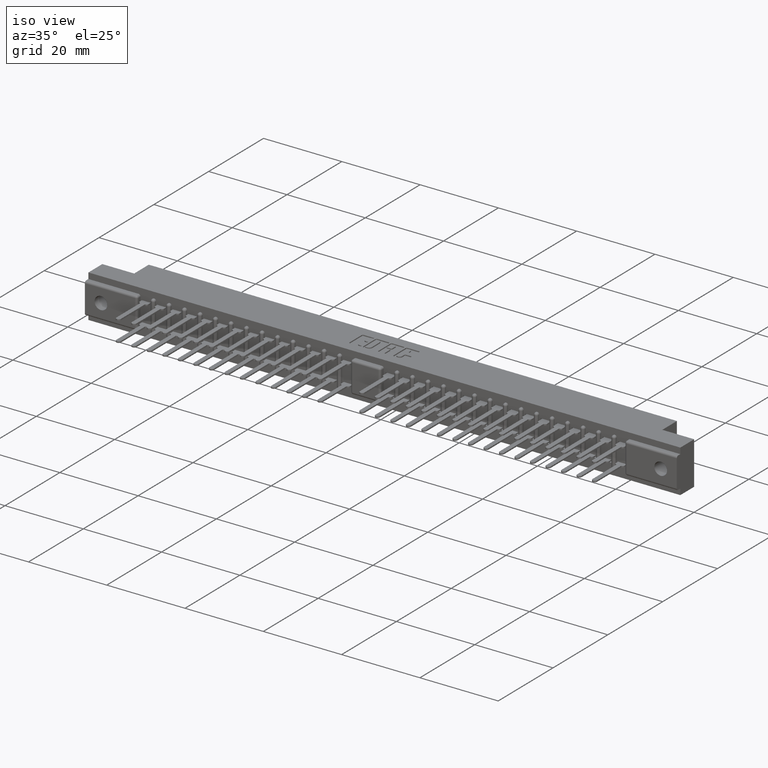
[diagram: clean part render]
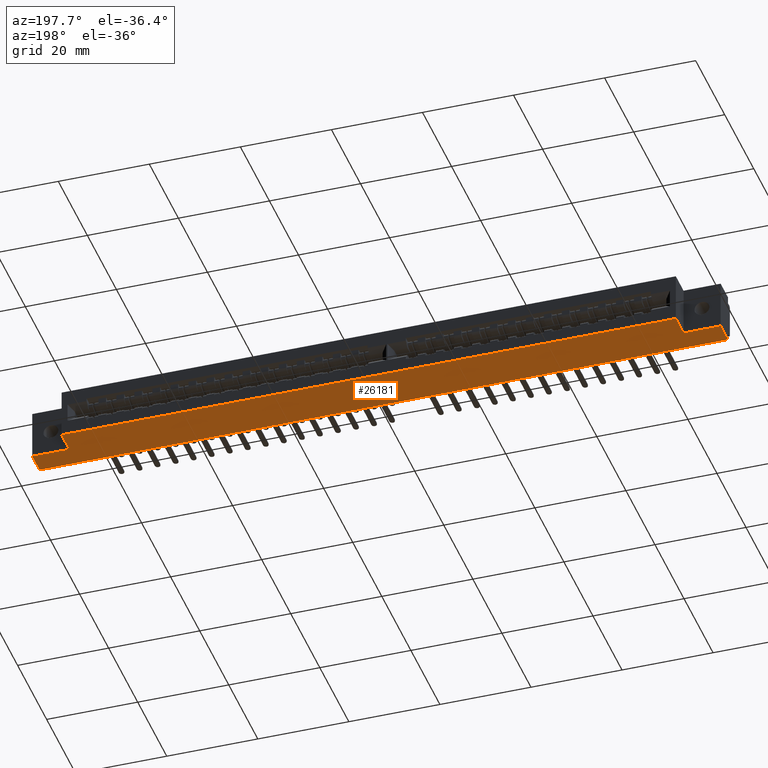
[diagram: tour spotlight — one face highlighted and labeled with its STEP entity id]
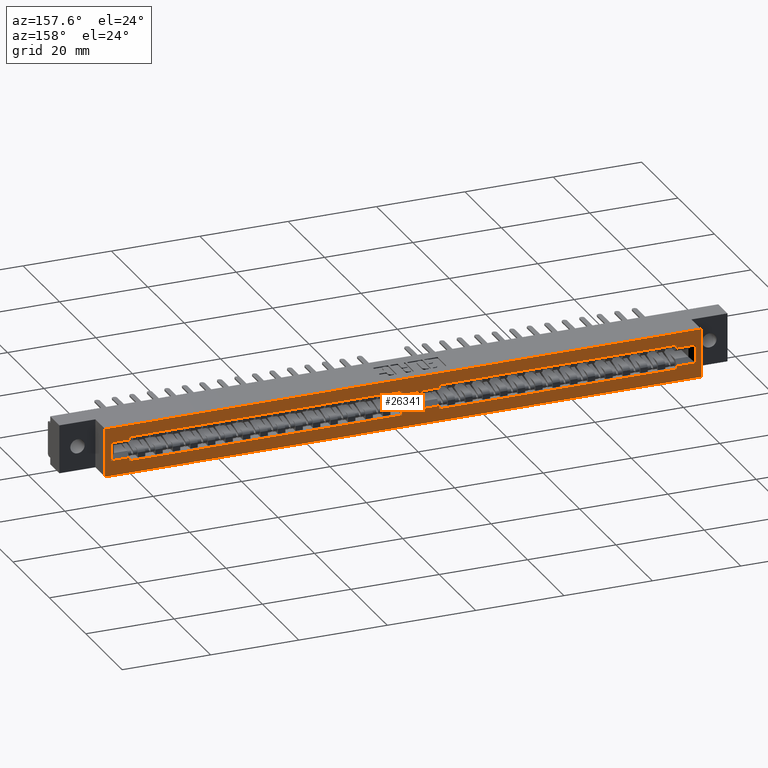
[diagram: tour spotlight — one face highlighted and labeled with its STEP entity id]
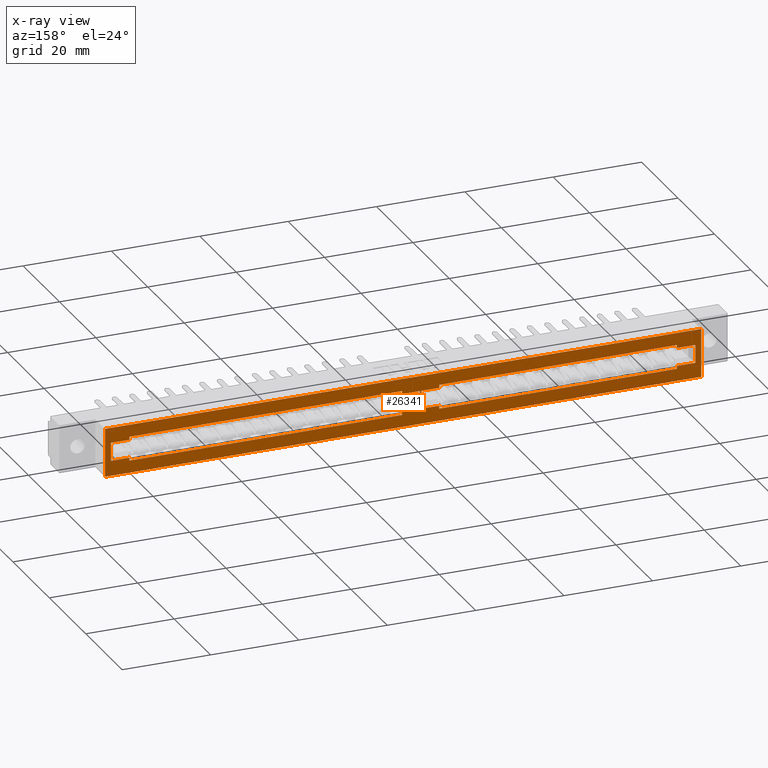
[diagram: x-ray of the same camera — body ghosted, this tour face saturated]
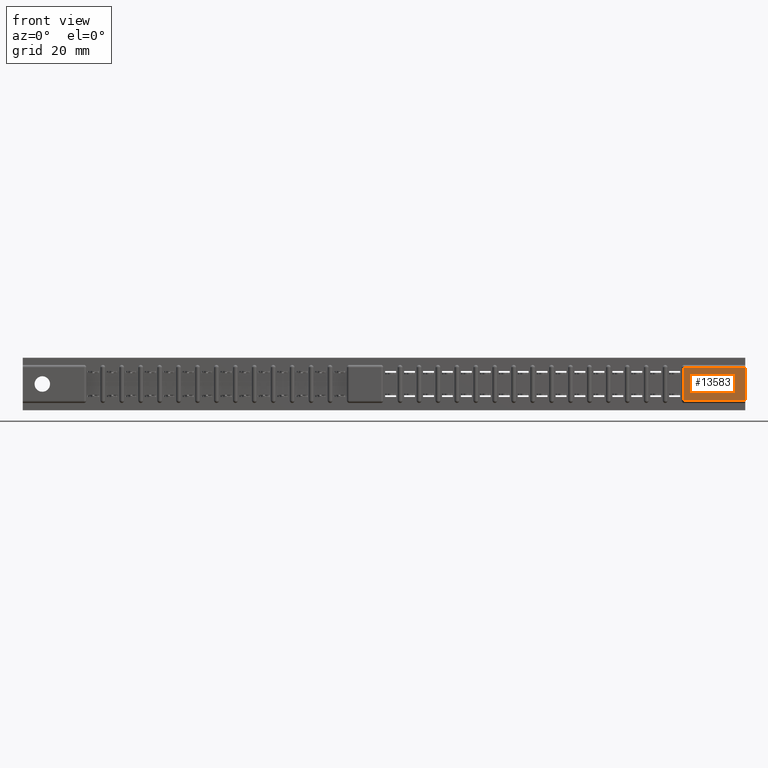
[diagram: tour spotlight — one face highlighted and labeled with its STEP entity id]
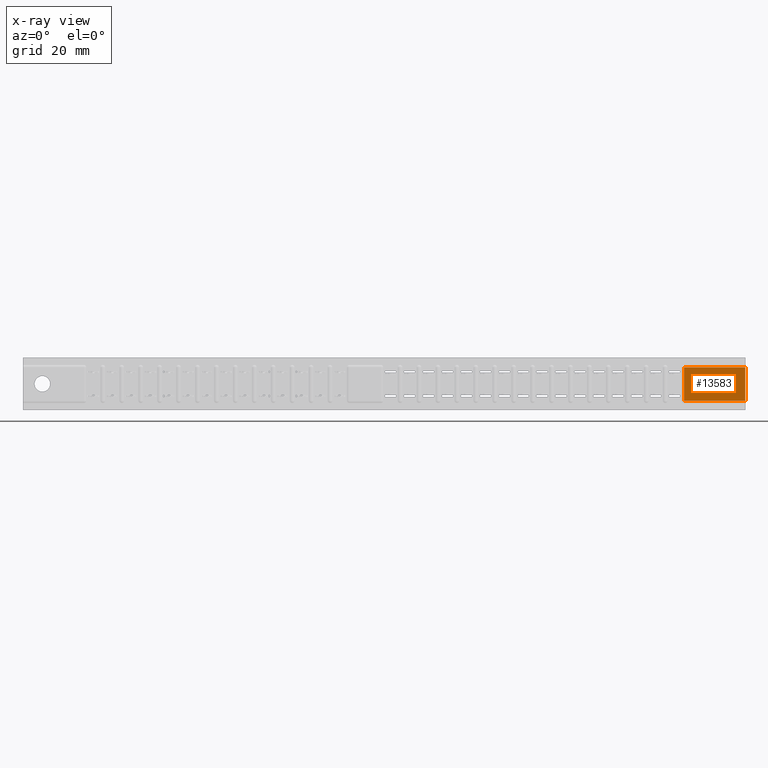
[diagram: x-ray of the same camera — body ghosted, this tour face saturated]
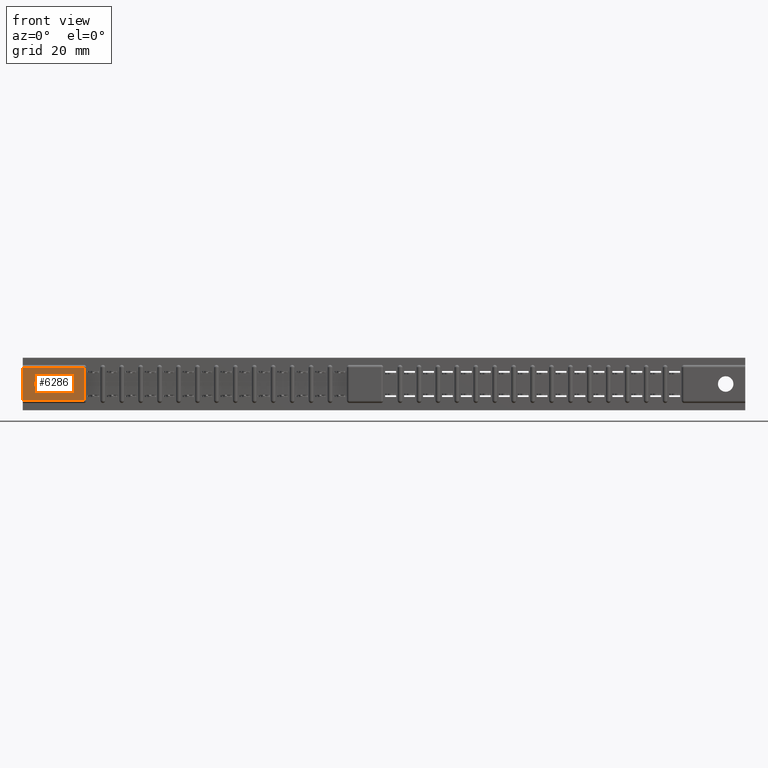
[diagram: tour spotlight — one face highlighted and labeled with its STEP entity id]
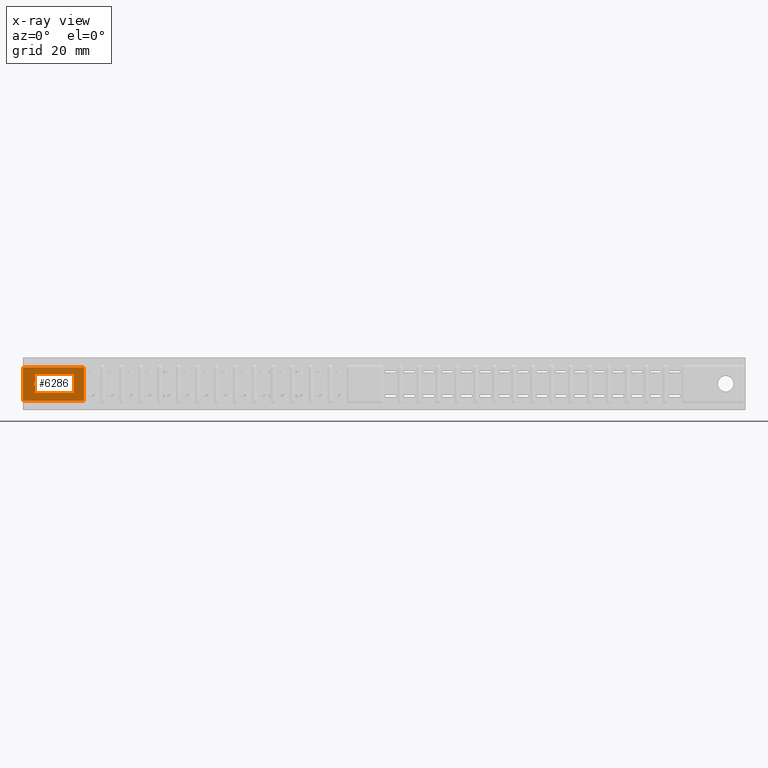
[diagram: x-ray of the same camera — body ghosted, this tour face saturated]
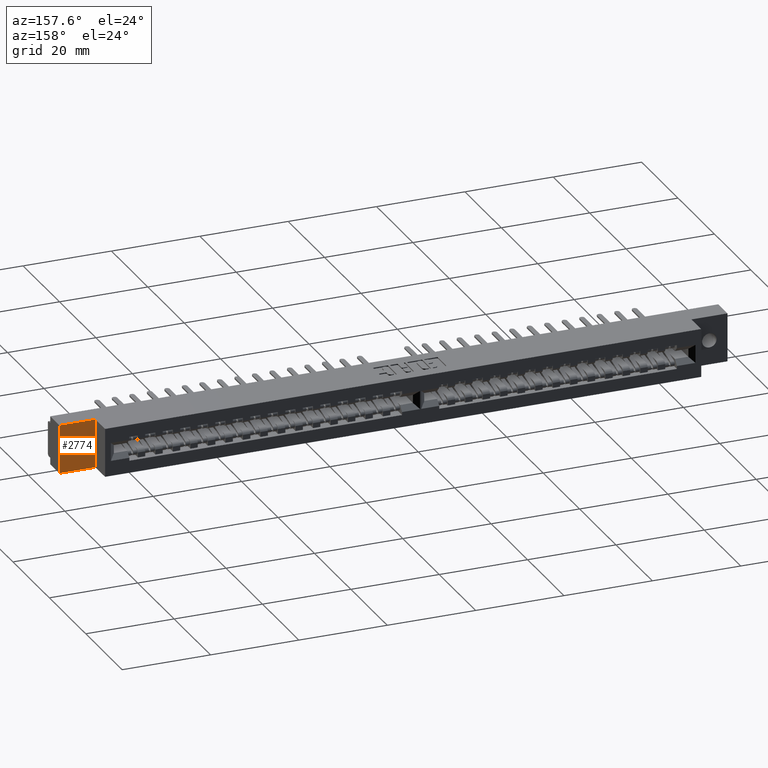
[diagram: tour spotlight — one face highlighted and labeled with its STEP entity id]
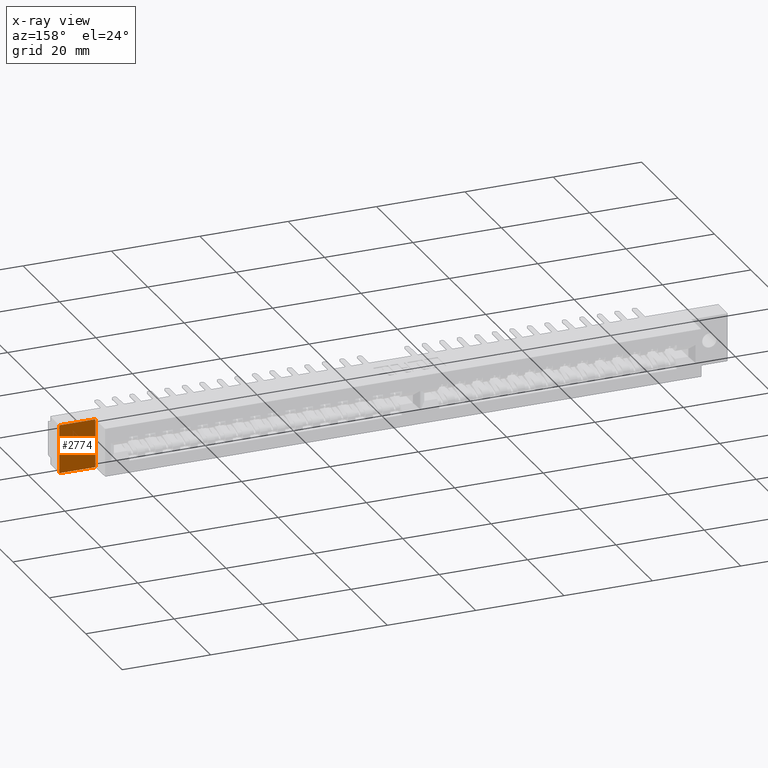
[diagram: x-ray of the same camera — body ghosted, this tour face saturated]
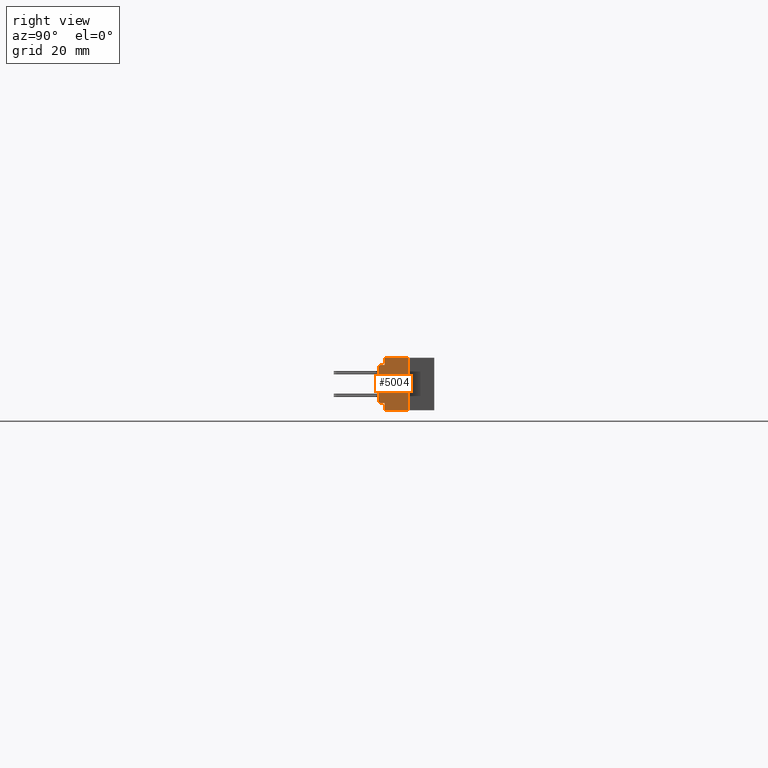
[diagram: tour spotlight — one face highlighted and labeled with its STEP entity id]
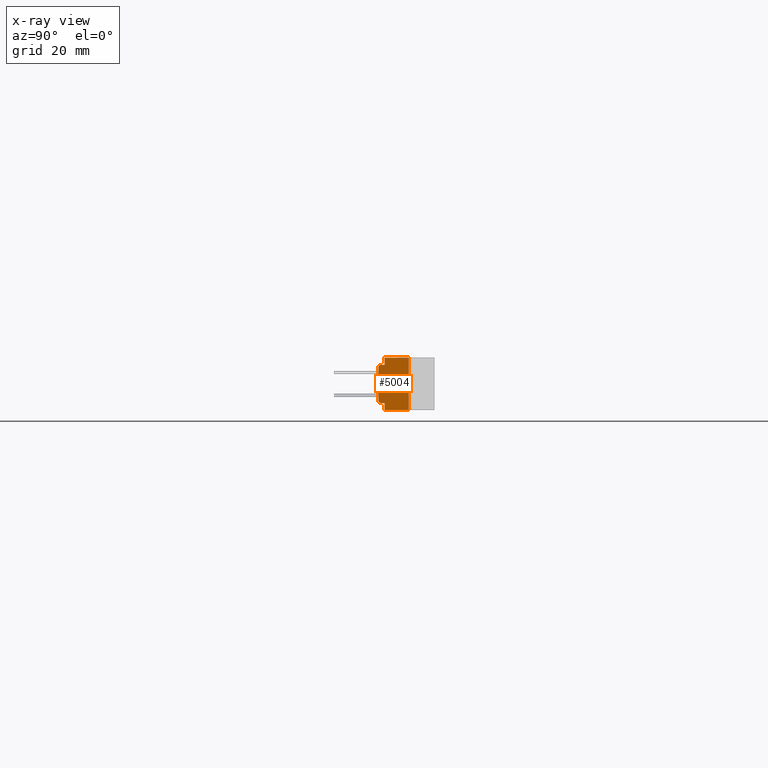
[diagram: x-ray of the same camera — body ghosted, this tour face saturated]
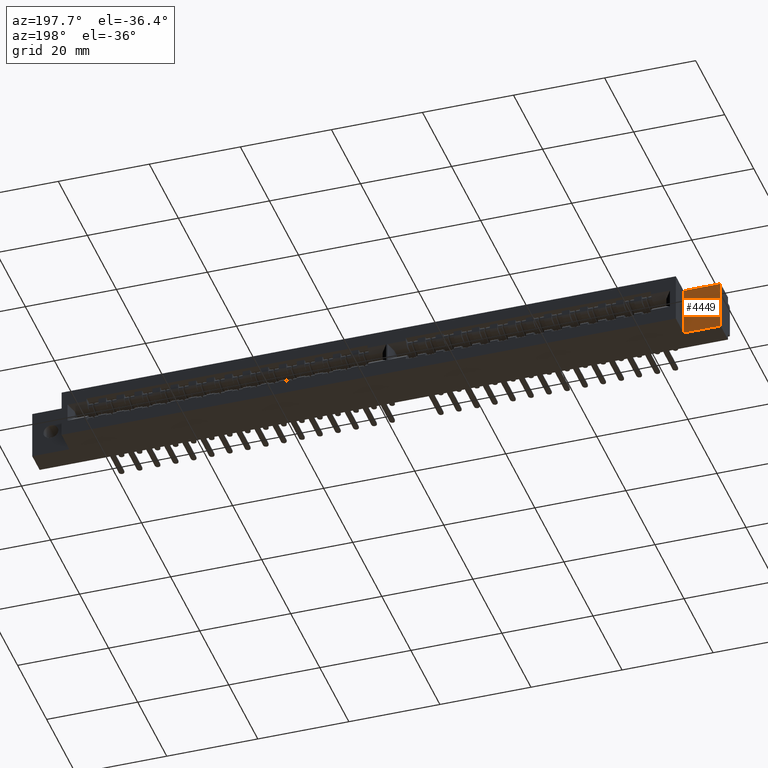
[diagram: tour spotlight — one face highlighted and labeled with its STEP entity id]
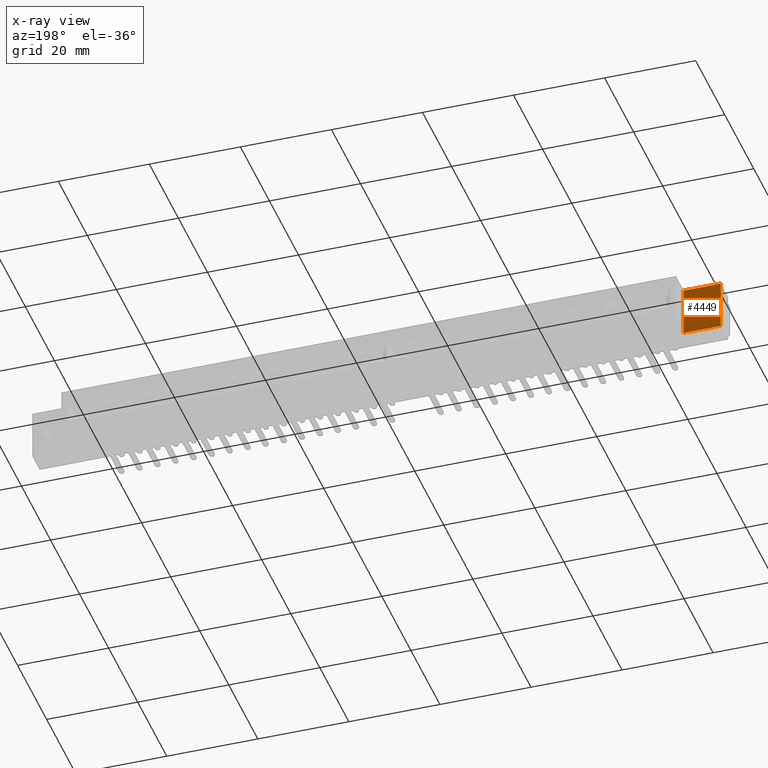
[diagram: x-ray of the same camera — body ghosted, this tour face saturated]
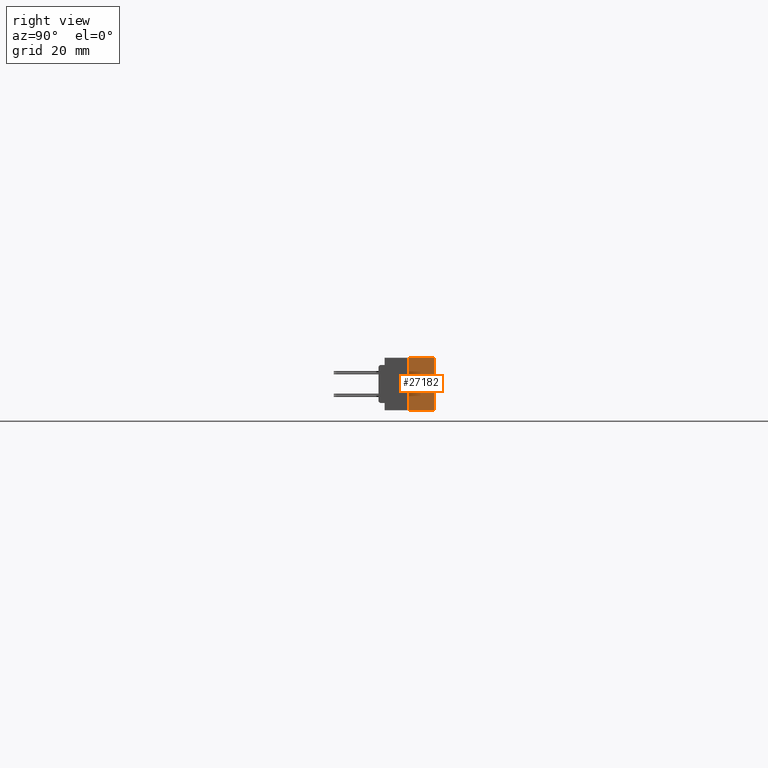
[diagram: tour spotlight — one face highlighted and labeled with its STEP entity id]
A machine part: a face-by-face anatomy tour. The part has 2926 B-rep faces; the first image is the clean iso view, then the 8 largest visible faces are spotlighted one at a time (largest first), each with its STEP entity span.

Face 1 — auxiliary view, entity #26181. In plain terms, the highlighted planar face has unit normal (0, 0, 1).
Definition (entity closure, byte-faithful):
#112 = LINE ( 'NONE', #24679, #27041 ) ;
#116 = CARTESIAN_POINT ( 'NONE',  ( -75.60309999999999800, 6.350000000000001400, -5.486399999999997100 ) ) ;
#833 = EDGE_CURVE ( 'NONE', #11271, #14190, #17273, .T. ) ;
#1030 = LINE ( 'NONE', #22356, #25882 ) ;
#1411 = DIRECTION ( 'NONE',  ( -1.000000000000000000, 0.0000000000000000000, -6.392780016375030400E-016 ) ) ;
#1419 = VECTOR ( 'NONE', #28560, 1000.000000000000000 ) ;
#1905 = LINE ( 'NONE', #15617, #17095 ) ;
#2375 = DIRECTION ( 'NONE',  ( -0.0000000000000000000, 1.000000000000000000, -0.0000000000000000000 ) ) ;
#2478 = VERTEX_POINT ( 'NONE', #10783 ) ;
#2919 = ORIENTED_EDGE ( 'NONE', *, *, #13834, .T. ) ;
#2955 = FACE_OUTER_BOUND ( 'NONE', #21014, .T. ) ;
#3116 = VECTOR ( 'NONE', #22226, 1000.000000000000000 ) ;
#3209 = DIRECTION ( 'NONE',  ( -0.0000000000000000000, -1.000000000000000000, -0.0000000000000000000 ) ) ;
#4478 = ORIENTED_EDGE ( 'NONE', *, *, #833, .F. ) ;
#4695 = VERTEX_POINT ( 'NONE', #6194 ) ;
#4762 = ORIENTED_EDGE ( 'NONE', *, *, #25728, .T. ) ;
#4891 = AXIS2_PLACEMENT_3D ( 'NONE', #22282, #9412, #18059 ) ;
#4975 = CARTESIAN_POINT ( 'NONE',  ( 67.46240000000001700, 11.68399999999999900, -5.486399999999997100 ) ) ;
#6135 = CARTESIAN_POINT ( 'NONE',  ( 75.60310000000002600, 6.350000000000001400, -5.486399999999997100 ) ) ;
#6194 = CARTESIAN_POINT ( 'NONE',  ( -75.60309999999999800, 6.350000000000001400, -5.486399999999997100 ) ) ;
#6840 = VERTEX_POINT ( 'NONE', #7919 ) ;
#7307 = LINE ( 'NONE', #116, #1419 ) ;
#7517 = VECTOR ( 'NONE', #3209, 1000.000000000000000 ) ;
#7541 = EDGE_CURVE ( 'NONE', #25820, #4695, #7307, .T. ) ;
#7636 = ORIENTED_EDGE ( 'NONE', *, *, #9614, .F. ) ;
#7919 = CARTESIAN_POINT ( 'NONE',  ( 67.46240000000001700, 6.350000000000001400, -5.486400000000002400 ) ) ;
#9412 = DIRECTION ( 'NONE',  ( 0.0000000000000000000, 0.0000000000000000000, 1.000000000000000000 ) ) ;
#9614 = EDGE_CURVE ( 'NONE', #24341, #6840, #9683, .T. ) ;
#9683 = LINE ( 'NONE', #6135, #13458 ) ;
#10783 = CARTESIAN_POINT ( 'NONE',  ( -75.60309999999999800, 1.295399999999999900, -5.486399999999997100 ) ) ;
#11271 = VERTEX_POINT ( 'NONE', #4975 ) ;
#11415 = PLANE ( 'NONE',  #4891 ) ;
#11593 = LINE ( 'NONE', #15194, #13664 ) ;
#13458 = VECTOR ( 'NONE', #1411, 1000.000000000000000 ) ;
#13664 = VECTOR ( 'NONE', #26256, 1000.000000000000000 ) ;
#13834 = EDGE_CURVE ( 'NONE', #25820, #14190, #1905, .T. ) ;
#14190 = VERTEX_POINT ( 'NONE', #20544 ) ;
#15194 = CARTESIAN_POINT ( 'NONE',  ( -59.34709999999999800, 1.295399999999999900, -5.486399999999966000 ) ) ;
#15617 = CARTESIAN_POINT ( 'NONE',  ( -67.46239999999998800, -13.66284510378421000, -5.486400000000002400 ) ) ;
#15653 = CARTESIAN_POINT ( 'NONE',  ( 75.60310000000002600, 6.350000000000001400, -5.486399999999997100 ) ) ;
#16439 = CARTESIAN_POINT ( 'NONE',  ( 75.60310000000002600, 11.68399999999999900, -5.486399999999997100 ) ) ;
#17095 = VECTOR ( 'NONE', #21877, 1000.000000000000000 ) ;
#17273 = LINE ( 'NONE', #22527, #3116 ) ;
#18059 = DIRECTION ( 'NONE',  ( 1.000000000000000000, 0.0000000000000000000, -0.0000000000000000000 ) ) ;
#19900 = LINE ( 'NONE', #16439, #7517 ) ;
#20544 = CARTESIAN_POINT ( 'NONE',  ( -67.46239999999998800, 11.68399999999999900, -5.486400000000002400 ) ) ;
#21014 = EDGE_LOOP ( 'NONE', ( #4762, #22062, #27738, #28412, #2919, #4478, #21223, #7636 ) ) ;
#21223 = ORIENTED_EDGE ( 'NONE', *, *, #24787, .F. ) ;
#21791 = VERTEX_POINT ( 'NONE', #25339 ) ;
#21877 = DIRECTION ( 'NONE',  ( -0.0000000000000000000, 1.000000000000000000, -0.0000000000000000000 ) ) ;
#21958 = EDGE_CURVE ( 'NONE', #2478, #21791, #11593, .T. ) ;
#22062 = ORIENTED_EDGE ( 'NONE', *, *, #21958, .F. ) ;
#22226 = DIRECTION ( 'NONE',  ( -1.000000000000000000, -0.0000000000000000000, -0.0000000000000000000 ) ) ;
#22282 = CARTESIAN_POINT ( 'NONE',  ( -75.60309999999999800, 11.68399999999999900, -5.486399999999997100 ) ) ;
#22356 = CARTESIAN_POINT ( 'NONE',  ( 67.46240000000001700, -13.66284510378421000, -5.486400000000002400 ) ) ;
#22527 = CARTESIAN_POINT ( 'NONE',  ( -75.60309999999999800, 11.68399999999999900, -5.486399999999997100 ) ) ;
#22798 = EDGE_CURVE ( 'NONE', #4695, #2478, #112, .T. ) ;
#24341 = VERTEX_POINT ( 'NONE', #15653 ) ;
#24572 = DIRECTION ( 'NONE',  ( -0.0000000000000000000, -1.000000000000000000, -0.0000000000000000000 ) ) ;
#24679 = CARTESIAN_POINT ( 'NONE',  ( -75.60309999999999800, 11.68399999999999900, -5.486399999999997100 ) ) ;
#24787 = EDGE_CURVE ( 'NONE', #6840, #11271, #1030, .T. ) ;
#25339 = CARTESIAN_POINT ( 'NONE',  ( 75.60309999999999800, 1.295399999999999900, -5.486399999999997100 ) ) ;
#25728 = EDGE_CURVE ( 'NONE', #24341, #21791, #19900, .T. ) ;
#25820 = VERTEX_POINT ( 'NONE', #27989 ) ;
#25882 = VECTOR ( 'NONE', #2375, 1000.000000000000000 ) ;
#26181 = ADVANCED_FACE ( 'NONE', ( #2955 ), #11415, .F. ) ;
#26256 = DIRECTION ( 'NONE',  ( 1.000000000000000000, -0.0000000000000000000, -0.0000000000000000000 ) ) ;
#27041 = VECTOR ( 'NONE', #24572, 1000.000000000000000 ) ;
#27738 = ORIENTED_EDGE ( 'NONE', *, *, #22798, .F. ) ;
#27989 = CARTESIAN_POINT ( 'NONE',  ( -67.46239999999998800, 6.350000000000001400, -5.486400000000002400 ) ) ;
#28412 = ORIENTED_EDGE ( 'NONE', *, *, #7541, .F. ) ;
#28560 = DIRECTION ( 'NONE',  ( -1.000000000000000000, 0.0000000000000000000, 6.392780016375030400E-016 ) ) ;

Face 2 — auxiliary view, entity #26341. An x-ray twin of the same camera follows (body ghosted, this face saturated) — the face is partly hidden behind the body. In plain terms, the highlighted planar face has unit normal (0, -1, 0).
Definition (entity closure, byte-faithful):
#22 = DIRECTION ( 'NONE',  ( 4.742791655667124900E-016, 0.0000000000000000000, 1.000000000000000000 ) ) ;
#380 = LINE ( 'NONE', #22249, #16598 ) ;
#613 = DIRECTION ( 'NONE',  ( 0.0000000000000000000, 0.0000000000000000000, -1.000000000000000000 ) ) ;
#697 = EDGE_CURVE ( 'NONE', #10562, #14120, #9761, .T. ) ;
#748 = VECTOR ( 'NONE', #25553, 1000.000000000000000 ) ;
#833 = EDGE_CURVE ( 'NONE', #11271, #14190, #17273, .T. ) ;
#1483 = VECTOR ( 'NONE', #613, 1000.000000000000000 ) ;
#1542 = VECTOR ( 'NONE', #3146, 1000.000000000000000 ) ;
#1645 = VECTOR ( 'NONE', #23249, 1000.000000000000000 ) ;
#1731 = VERTEX_POINT ( 'NONE', #16415 ) ;
#1756 = CARTESIAN_POINT ( 'NONE',  ( 61.96330000000001800, 11.68399999999999900, 2.730499999999999300 ) ) ;
#2282 = DIRECTION ( 'NONE',  ( -1.000000000000000000, 0.0000000000000000000, 4.897995632499410400E-016 ) ) ;
#2302 = ORIENTED_EDGE ( 'NONE', *, *, #20470, .T. ) ;
#2528 = LINE ( 'NONE', #6591, #13245 ) ;
#2663 = LINE ( 'NONE', #18905, #1645 ) ;
#3065 = CARTESIAN_POINT ( 'NONE',  ( -67.46239999999998800, 11.68399999999999900, -5.486400000000002400 ) ) ;
#3103 = CARTESIAN_POINT ( 'NONE',  ( -8.166100000000001900, 11.68399999999999900, 2.730500000000001500 ) ) ;
#3116 = VECTOR ( 'NONE', #22226, 1000.000000000000000 ) ;
#3146 = DIRECTION ( 'NONE',  ( 0.0000000000000000000, 0.0000000000000000000, -1.000000000000000000 ) ) ;
#3156 = DIRECTION ( 'NONE',  ( -1.000000000000000000, 0.0000000000000000000, 0.0000000000000000000 ) ) ;
#3248 = ORIENTED_EDGE ( 'NONE', *, *, #15837, .F. ) ;
#3283 = VERTEX_POINT ( 'NONE', #22445 ) ;
#3347 = EDGE_CURVE ( 'NONE', #7990, #26373, #12681, .T. ) ;
#3809 = DIRECTION ( 'NONE',  ( 0.0000000000000000000, 0.0000000000000000000, -1.000000000000000000 ) ) ;
#3832 = CARTESIAN_POINT ( 'NONE',  ( 61.96330000000001800, 11.68399999999999900, -2.057400000000053600 ) ) ;
#3836 = VECTOR ( 'NONE', #8758, 1000.000000000000000 ) ;
#3954 = CARTESIAN_POINT ( 'NONE',  ( 67.46240000000001700, 11.68399999999999900, 5.486400000000000600 ) ) ;
#3995 = CARTESIAN_POINT ( 'NONE',  ( 0.2413000000000276000, 11.68399999999999900, 2.730499999999999300 ) ) ;
#4238 = LINE ( 'NONE', #11274, #28417 ) ;
#4383 = ORIENTED_EDGE ( 'NONE', *, *, #20377, .T. ) ;
#4456 = DIRECTION ( 'NONE',  ( 0.0000000000000000000, 0.0000000000000000000, 1.000000000000000000 ) ) ;
#4790 = CARTESIAN_POINT ( 'NONE',  ( 0.0000000000000000000, 11.68399999999999900, 2.057400000000014100 ) ) ;
#4846 = VERTEX_POINT ( 'NONE', #24613 ) ;
#4903 = CARTESIAN_POINT ( 'NONE',  ( 0.0000000000000000000, 11.68399999999999900, 2.057400000000014100 ) ) ;
#4975 = CARTESIAN_POINT ( 'NONE',  ( 67.46240000000001700, 11.68399999999999900, -5.486399999999997100 ) ) ;
#5165 = VERTEX_POINT ( 'NONE', #22531 ) ;
#5182 = DIRECTION ( 'NONE',  ( -1.000000000000000000, 0.0000000000000000000, 0.0000000000000000000 ) ) ;
#5359 = ORIENTED_EDGE ( 'NONE', *, *, #11092, .F. ) ;
#5576 = CARTESIAN_POINT ( 'NONE',  ( -3.822699999999984200, 11.68399999999999900, 2.057400000000014100 ) ) ;
#5686 = CARTESIAN_POINT ( 'NONE',  ( 66.15430000000002100, 11.68399999999999900, 2.057400000000014100 ) ) ;
#5798 = LINE ( 'NONE', #3103, #19592 ) ;
#6359 = EDGE_CURVE ( 'NONE', #4846, #19433, #14651, .T. ) ;
#6591 = CARTESIAN_POINT ( 'NONE',  ( 67.46240000000001700, 11.68399999999999900, -5.486400000000002400 ) ) ;
#6713 = LINE ( 'NONE', #20020, #1542 ) ;
#6761 = VECTOR ( 'NONE', #26584, 1000.000000000000000 ) ;
#6921 = DIRECTION ( 'NONE',  ( 1.000000000000000000, 0.0000000000000000000, -1.197287821277633600E-016 ) ) ;
#7019 = LINE ( 'NONE', #10272, #16681 ) ;
#7035 = VECTOR ( 'NONE', #8742, 1000.000000000000000 ) ;
#7075 = CARTESIAN_POINT ( 'NONE',  ( -75.60309999999999800, 11.68399999999999900, 5.486400000000000600 ) ) ;
#7349 = DIRECTION ( 'NONE',  ( 1.000000000000000000, 0.0000000000000000000, 0.0000000000000000000 ) ) ;
#7371 = LINE ( 'NONE', #9521, #1483 ) ;
#7427 = ORIENTED_EDGE ( 'NONE', *, *, #17030, .T. ) ;
#7546 = VECTOR ( 'NONE', #26649, 1000.000000000000000 ) ;
#7562 = CARTESIAN_POINT ( 'NONE',  ( 0.2413000000000276000, 11.68399999999999900, -2.057400000000017200 ) ) ;
#7865 = ORIENTED_EDGE ( 'NONE', *, *, #15357, .F. ) ;
#7899 = VERTEX_POINT ( 'NONE', #27490 ) ;
#7990 = VERTEX_POINT ( 'NONE', #3832 ) ;
#8239 = EDGE_CURVE ( 'NONE', #3283, #17228, #380, .T. ) ;
#8742 = DIRECTION ( 'NONE',  ( 1.000000000000000000, 0.0000000000000000000, -1.897116662266852400E-016 ) ) ;
#8758 = DIRECTION ( 'NONE',  ( -0.0000000000000000000, -0.0000000000000000000, 1.000000000000000000 ) ) ;
#9024 = VECTOR ( 'NONE', #20164, 1000.000000000000000 ) ;
#9141 = CARTESIAN_POINT ( 'NONE',  ( 66.15430000000002100, 11.68399999999999900, 0.0000000000000000000 ) ) ;
#9274 = EDGE_CURVE ( 'NONE', #10840, #1731, #18630, .T. ) ;
#9437 = CARTESIAN_POINT ( 'NONE',  ( -8.166100000000001900, 11.68399999999999900, 2.057400000000005700 ) ) ;
#9468 = EDGE_LOOP ( 'NONE', ( #26551, #10138, #3248, #22203, #16834, #12658, #10967, #27023, #12967, #22164, #13444, #27528 ) ) ;
#9482 = VECTOR ( 'NONE', #10304, 1000.000000000000000 ) ;
#9521 = CARTESIAN_POINT ( 'NONE',  ( -66.15430000000000600, 11.68399999999999900, 0.0000000000000000000 ) ) ;
#9761 = LINE ( 'NONE', #13099, #3836 ) ;
#9933 = VERTEX_POINT ( 'NONE', #9437 ) ;
#10027 = EDGE_CURVE ( 'NONE', #21792, #7899, #5798, .T. ) ;
#10138 = ORIENTED_EDGE ( 'NONE', *, *, #9274, .T. ) ;
#10272 = CARTESIAN_POINT ( 'NONE',  ( 61.96330000000001800, 11.68399999999999900, 2.730499999999999300 ) ) ;
#10273 = VERTEX_POINT ( 'NONE', #3954 ) ;
#10304 = DIRECTION ( 'NONE',  ( -0.0000000000000000000, -0.0000000000000000000, 1.000000000000000000 ) ) ;
#10380 = ORIENTED_EDGE ( 'NONE', *, *, #28038, .T. ) ;
#10400 = CARTESIAN_POINT ( 'NONE',  ( 66.15430000000002100, 11.68399999999999900, -2.057400000000056700 ) ) ;
#10562 = VERTEX_POINT ( 'NONE', #26710 ) ;
#10729 = CARTESIAN_POINT ( 'NONE',  ( 61.96330000000001800, 11.68399999999999900, -2.730499999999999300 ) ) ;
#10840 = VERTEX_POINT ( 'NONE', #5686 ) ;
#10967 = ORIENTED_EDGE ( 'NONE', *, *, #14033, .T. ) ;
#11000 = VERTEX_POINT ( 'NONE', #15070 ) ;
#11010 = CARTESIAN_POINT ( 'NONE',  ( -61.96329999999999000, 11.68399999999999900, -2.730499999999997500 ) ) ;
#11092 = EDGE_CURVE ( 'NONE', #7899, #10562, #12653, .T. ) ;
#11219 = AXIS2_PLACEMENT_3D ( 'NONE', #25211, #20630, #27390 ) ;
#11271 = VERTEX_POINT ( 'NONE', #4975 ) ;
#11274 = CARTESIAN_POINT ( 'NONE',  ( -2.463299963496608400E-016, 11.68399999999999900, -2.057400000000004300 ) ) ;
#11433 = VERTEX_POINT ( 'NONE', #23117 ) ;
#11580 = CARTESIAN_POINT ( 'NONE',  ( 0.2413000000000276000, 11.68399999999999900, 2.730499999999999300 ) ) ;
#11783 = DIRECTION ( 'NONE',  ( -0.0000000000000000000, -0.0000000000000000000, -1.000000000000000000 ) ) ;
#11839 = ORIENTED_EDGE ( 'NONE', *, *, #25193, .T. ) ;
#11935 = LINE ( 'NONE', #3065, #13314 ) ;
#11967 = VECTOR ( 'NONE', #26979, 1000.000000000000000 ) ;
#12181 = LINE ( 'NONE', #4903, #19754 ) ;
#12368 = EDGE_CURVE ( 'NONE', #5165, #17228, #2663, .T. ) ;
#12578 = DIRECTION ( 'NONE',  ( -1.000000000000000000, -0.0000000000000000000, -0.0000000000000000000 ) ) ;
#12653 = LINE ( 'NONE', #11010, #6761 ) ;
#12656 = VERTEX_POINT ( 'NONE', #10729 ) ;
#12658 = ORIENTED_EDGE ( 'NONE', *, *, #16116, .T. ) ;
#12681 = LINE ( 'NONE', #20110, #26785 ) ;
#12712 = CARTESIAN_POINT ( 'NONE',  ( -8.166100000000001900, 11.68399999999999900, 2.730500000000001500 ) ) ;
#12784 = VECTOR ( 'NONE', #5182, 1000.000000000000000 ) ;
#12808 = VECTOR ( 'NONE', #3809, 1000.000000000000000 ) ;
#12908 = LINE ( 'NONE', #21930, #7035 ) ;
#12965 = EDGE_CURVE ( 'NONE', #17467, #14214, #13349, .T. ) ;
#12967 = ORIENTED_EDGE ( 'NONE', *, *, #8239, .F. ) ;
#13099 = CARTESIAN_POINT ( 'NONE',  ( -61.96329999999999000, 11.68399999999999900, 2.730500000000001900 ) ) ;
#13245 = VECTOR ( 'NONE', #22406, 1000.000000000000000 ) ;
#13293 = VERTEX_POINT ( 'NONE', #26462 ) ;
#13314 = VECTOR ( 'NONE', #11783, 1000.000000000000000 ) ;
#13318 = LINE ( 'NONE', #25205, #25745 ) ;
#13349 = LINE ( 'NONE', #11580, #11967 ) ;
#13444 = ORIENTED_EDGE ( 'NONE', *, *, #19501, .F. ) ;
#13477 = VERTEX_POINT ( 'NONE', #16113 ) ;
#13495 = EDGE_CURVE ( 'NONE', #14214, #21836, #13318, .T. ) ;
#13990 = CARTESIAN_POINT ( 'NONE',  ( -8.166100000000001900, 11.68399999999999900, 2.730500000000001500 ) ) ;
#14033 = EDGE_CURVE ( 'NONE', #25052, #5165, #6713, .T. ) ;
#14120 = VERTEX_POINT ( 'NONE', #16473 ) ;
#14187 = ORIENTED_EDGE ( 'NONE', *, *, #10027, .F. ) ;
#14190 = VERTEX_POINT ( 'NONE', #20544 ) ;
#14214 = VERTEX_POINT ( 'NONE', #3995 ) ;
#14651 = LINE ( 'NONE', #27831, #9482 ) ;
#15070 = CARTESIAN_POINT ( 'NONE',  ( -67.46239999999998800, 11.68399999999999900, 5.486400000000000600 ) ) ;
#15357 = EDGE_CURVE ( 'NONE', #11271, #10273, #2528, .T. ) ;
#15595 = CARTESIAN_POINT ( 'NONE',  ( -61.96329999999999000, 11.68399999999999900, 2.730500000000001900 ) ) ;
#15761 = FACE_BOUND ( 'NONE', #21436, .T. ) ;
#15813 = LINE ( 'NONE', #16434, #20268 ) ;
#15816 = DIRECTION ( 'NONE',  ( -0.0000000000000000000, -0.0000000000000000000, 1.000000000000000000 ) ) ;
#15837 = EDGE_CURVE ( 'NONE', #21836, #1731, #7019, .T. ) ;
#16113 = CARTESIAN_POINT ( 'NONE',  ( -4.102099999999985000, 11.68399999999999900, -2.057400000000003900 ) ) ;
#16116 = EDGE_CURVE ( 'NONE', #17467, #25052, #12181, .T. ) ;
#16202 = PLANE ( 'NONE',  #11219 ) ;
#16289 = ORIENTED_EDGE ( 'NONE', *, *, #26670, .F. ) ;
#16415 = CARTESIAN_POINT ( 'NONE',  ( 61.96330000000001800, 11.68399999999999900, 2.057400000000014100 ) ) ;
#16434 = CARTESIAN_POINT ( 'NONE',  ( 59.67730000000002400, 11.68399999999999900, -2.730499999999999300 ) ) ;
#16473 = CARTESIAN_POINT ( 'NONE',  ( -61.96329999999999000, 11.68399999999999900, -2.057399999999997200 ) ) ;
#16598 = VECTOR ( 'NONE', #15816, 1000.000000000000000 ) ;
#16681 = VECTOR ( 'NONE', #19008, 1000.000000000000000 ) ;
#16834 = ORIENTED_EDGE ( 'NONE', *, *, #12965, .F. ) ;
#16915 = EDGE_CURVE ( 'NONE', #24922, #9933, #22460, .T. ) ;
#16920 = ORIENTED_EDGE ( 'NONE', *, *, #24837, .T. ) ;
#16937 = CARTESIAN_POINT ( 'NONE',  ( -2.463299963496609400E-016, 11.68399999999999900, -2.057400000000004800 ) ) ;
#17030 = EDGE_CURVE ( 'NONE', #11000, #10273, #19347, .T. ) ;
#17094 = LINE ( 'NONE', #9141, #21939 ) ;
#17195 = ORIENTED_EDGE ( 'NONE', *, *, #833, .T. ) ;
#17228 = VERTEX_POINT ( 'NONE', #7562 ) ;
#17273 = LINE ( 'NONE', #22527, #3116 ) ;
#17395 = ORIENTED_EDGE ( 'NONE', *, *, #22882, .T. ) ;
#17467 = VERTEX_POINT ( 'NONE', #25634 ) ;
#17845 = VECTOR ( 'NONE', #22, 1000.000000000000000 ) ;
#18181 = DIRECTION ( 'NONE',  ( 0.0000000000000000000, 0.0000000000000000000, -1.000000000000000000 ) ) ;
#18520 = LINE ( 'NONE', #18701, #17845 ) ;
#18630 = LINE ( 'NONE', #4790, #12784 ) ;
#18701 = CARTESIAN_POINT ( 'NONE',  ( -4.102099999999983200, 11.68399999999999900, 1.945540565071203700E-015 ) ) ;
#18905 = CARTESIAN_POINT ( 'NONE',  ( -1.258813644316951500E-015, 11.68399999999999900, -2.057400000000016800 ) ) ;
#19008 = DIRECTION ( 'NONE',  ( 0.0000000000000000000, 0.0000000000000000000, -1.000000000000000000 ) ) ;
#19347 = LINE ( 'NONE', #7075, #9024 ) ;
#19433 = VERTEX_POINT ( 'NONE', #15595 ) ;
#19501 = EDGE_CURVE ( 'NONE', #7990, #12656, #27199, .T. ) ;
#19592 = VECTOR ( 'NONE', #18181, 1000.000000000000000 ) ;
#19754 = VECTOR ( 'NONE', #3156, 1000.000000000000000 ) ;
#19822 = EDGE_CURVE ( 'NONE', #12656, #3283, #15813, .T. ) ;
#19873 = LINE ( 'NONE', #24900, #20576 ) ;
#19897 = CARTESIAN_POINT ( 'NONE',  ( 61.96330000000001800, 11.68399999999999900, 2.730499999999999300 ) ) ;
#20020 = CARTESIAN_POINT ( 'NONE',  ( -3.822699999999984200, 11.68399999999999900, 0.0000000000000000000 ) ) ;
#20110 = CARTESIAN_POINT ( 'NONE',  ( -1.258813644316951000E-015, 11.68399999999999900, -2.057400000000015900 ) ) ;
#20164 = DIRECTION ( 'NONE',  ( 1.000000000000000000, 0.0000000000000000000, 0.0000000000000000000 ) ) ;
#20268 = VECTOR ( 'NONE', #12578, 1000.000000000000000 ) ;
#20377 = EDGE_CURVE ( 'NONE', #13477, #13293, #18520, .T. ) ;
#20470 = EDGE_CURVE ( 'NONE', #13293, #9933, #19873, .T. ) ;
#20544 = CARTESIAN_POINT ( 'NONE',  ( -67.46239999999998800, 11.68399999999999900, -5.486400000000002400 ) ) ;
#20576 = VECTOR ( 'NONE', #20921, 1000.000000000000000 ) ;
#20630 = DIRECTION ( 'NONE',  ( 0.0000000000000000000, -1.000000000000000000, 0.0000000000000000000 ) ) ;
#20764 = CARTESIAN_POINT ( 'NONE',  ( -66.15430000000000600, 11.68399999999999900, -2.057399999999996800 ) ) ;
#20871 = ORIENTED_EDGE ( 'NONE', *, *, #697, .F. ) ;
#20921 = DIRECTION ( 'NONE',  ( -1.000000000000000000, 0.0000000000000000000, 4.897995632499410400E-016 ) ) ;
#21117 = EDGE_LOOP ( 'NONE', ( #7427, #7865, #17195, #16289 ) ) ;
#21436 = EDGE_LOOP ( 'NONE', ( #4383, #2302, #24423, #28041, #23233, #16920, #10380, #11839, #20871, #5359, #14187, #17395 ) ) ;
#21473 = EDGE_CURVE ( 'NONE', #26373, #10840, #17094, .T. ) ;
#21781 = VERTEX_POINT ( 'NONE', #20764 ) ;
#21792 = VERTEX_POINT ( 'NONE', #27424 ) ;
#21836 = VERTEX_POINT ( 'NONE', #1756 ) ;
#21930 = CARTESIAN_POINT ( 'NONE',  ( -61.96329999999999000, 11.68399999999999900, 2.730500000000001900 ) ) ;
#21939 = VECTOR ( 'NONE', #4456, 1000.000000000000000 ) ;
#22079 = VECTOR ( 'NONE', #2282, 1000.000000000000000 ) ;
#22164 = ORIENTED_EDGE ( 'NONE', *, *, #19822, .F. ) ;
#22203 = ORIENTED_EDGE ( 'NONE', *, *, #13495, .F. ) ;
#22226 = DIRECTION ( 'NONE',  ( -1.000000000000000000, -0.0000000000000000000, -0.0000000000000000000 ) ) ;
#22249 = CARTESIAN_POINT ( 'NONE',  ( 0.2413000000000276000, 11.68399999999999900, 2.730499999999999300 ) ) ;
#22256 = CARTESIAN_POINT ( 'NONE',  ( 1.007713621430429700E-015, 11.68399999999999900, 2.057400000000002100 ) ) ;
#22406 = DIRECTION ( 'NONE',  ( 0.0000000000000000000, 0.0000000000000000000, 1.000000000000000000 ) ) ;
#22445 = CARTESIAN_POINT ( 'NONE',  ( 0.2413000000000276000, 11.68399999999999900, -2.730499999999999300 ) ) ;
#22460 = LINE ( 'NONE', #12712, #12808 ) ;
#22527 = CARTESIAN_POINT ( 'NONE',  ( -75.60309999999999800, 11.68399999999999900, -5.486399999999997100 ) ) ;
#22531 = CARTESIAN_POINT ( 'NONE',  ( -3.822699999999984200, 11.68399999999999900, -2.057400000000014600 ) ) ;
#22636 = FACE_OUTER_BOUND ( 'NONE', #21117, .T. ) ;
#22882 = EDGE_CURVE ( 'NONE', #21792, #13477, #4238, .T. ) ;
#23117 = CARTESIAN_POINT ( 'NONE',  ( -66.15430000000000600, 11.68399999999999900, 2.057400000000034100 ) ) ;
#23233 = ORIENTED_EDGE ( 'NONE', *, *, #6359, .F. ) ;
#23249 = DIRECTION ( 'NONE',  ( 1.000000000000000000, 0.0000000000000000000, -6.118468184684267000E-016 ) ) ;
#24372 = FACE_BOUND ( 'NONE', #9468, .T. ) ;
#24423 = ORIENTED_EDGE ( 'NONE', *, *, #16915, .F. ) ;
#24613 = CARTESIAN_POINT ( 'NONE',  ( -61.96329999999999000, 11.68399999999999900, 2.057400000000032800 ) ) ;
#24837 = EDGE_CURVE ( 'NONE', #4846, #11433, #26553, .T. ) ;
#24900 = CARTESIAN_POINT ( 'NONE',  ( 1.007713621430429500E-015, 11.68399999999999900, 2.057400000000001700 ) ) ;
#24922 = VERTEX_POINT ( 'NONE', #13990 ) ;
#25052 = VERTEX_POINT ( 'NONE', #5576 ) ;
#25193 = EDGE_CURVE ( 'NONE', #21781, #14120, #26354, .T. ) ;
#25205 = CARTESIAN_POINT ( 'NONE',  ( 59.67730000000002400, 11.68399999999999900, 2.730499999999999300 ) ) ;
#25211 = CARTESIAN_POINT ( 'NONE',  ( 0.0000000000000000000, 11.68399999999999900, 0.0000000000000000000 ) ) ;
#25553 = DIRECTION ( 'NONE',  ( 1.000000000000000000, 0.0000000000000000000, -1.197287821277633600E-016 ) ) ;
#25634 = CARTESIAN_POINT ( 'NONE',  ( 0.2413000000000276000, 11.68399999999999900, 2.057400000000014100 ) ) ;
#25745 = VECTOR ( 'NONE', #7349, 1000.000000000000000 ) ;
#26341 = ADVANCED_FACE ( 'NONE', ( #24372, #15761, #22636 ), #16202, .F. ) ;
#26354 = LINE ( 'NONE', #16937, #748 ) ;
#26373 = VERTEX_POINT ( 'NONE', #10400 ) ;
#26462 = CARTESIAN_POINT ( 'NONE',  ( -4.102099999999982300, 11.68399999999999900, 2.057400000000003400 ) ) ;
#26551 = ORIENTED_EDGE ( 'NONE', *, *, #21473, .T. ) ;
#26553 = LINE ( 'NONE', #22256, #22079 ) ;
#26584 = DIRECTION ( 'NONE',  ( -1.000000000000000000, -0.0000000000000000000, 1.897116662266852400E-016 ) ) ;
#26649 = DIRECTION ( 'NONE',  ( 0.0000000000000000000, 0.0000000000000000000, -1.000000000000000000 ) ) ;
#26670 = EDGE_CURVE ( 'NONE', #11000, #14190, #11935, .T. ) ;
#26710 = CARTESIAN_POINT ( 'NONE',  ( -61.96329999999999000, 11.68399999999999900, -2.730499999999997500 ) ) ;
#26767 = DIRECTION ( 'NONE',  ( 1.000000000000000000, 0.0000000000000000000, -6.118468184684267000E-016 ) ) ;
#26785 = VECTOR ( 'NONE', #26767, 1000.000000000000000 ) ;
#26979 = DIRECTION ( 'NONE',  ( -0.0000000000000000000, -0.0000000000000000000, 1.000000000000000000 ) ) ;
#27023 = ORIENTED_EDGE ( 'NONE', *, *, #12368, .T. ) ;
#27199 = LINE ( 'NONE', #19897, #7546 ) ;
#27390 = DIRECTION ( 'NONE',  ( 0.0000000000000000000, -0.0000000000000000000, -1.000000000000000000 ) ) ;
#27424 = CARTESIAN_POINT ( 'NONE',  ( -8.166100000000001900, 11.68399999999999900, -2.057400000000003000 ) ) ;
#27490 = CARTESIAN_POINT ( 'NONE',  ( -8.166100000000001900, 11.68399999999999900, -2.730499999999997900 ) ) ;
#27528 = ORIENTED_EDGE ( 'NONE', *, *, #3347, .T. ) ;
#27821 = EDGE_CURVE ( 'NONE', #19433, #24922, #12908, .T. ) ;
#27831 = CARTESIAN_POINT ( 'NONE',  ( -61.96329999999999000, 11.68399999999999900, 2.730500000000001900 ) ) ;
#28038 = EDGE_CURVE ( 'NONE', #11433, #21781, #7371, .T. ) ;
#28041 = ORIENTED_EDGE ( 'NONE', *, *, #27821, .F. ) ;
#28417 = VECTOR ( 'NONE', #6921, 1000.000000000000000 ) ;

Face 3 — front view, entity #13583. An x-ray twin of the same camera follows (body ghosted, this face saturated) — the face is partly hidden behind the body. In plain terms, the highlighted planar face has unit normal (0, -1, 0).
Definition (entity closure, byte-faithful):
#883 = ORIENTED_EDGE ( 'NONE', *, *, #5612, .F. ) ;
#1001 = VERTEX_POINT ( 'NONE', #16446 ) ;
#1347 = CARTESIAN_POINT ( 'NONE',  ( 0.0000000000000000000, 0.0000000000000000000, 0.0000000000000000000 ) ) ;
#1825 = VERTEX_POINT ( 'NONE', #22783 ) ;
#1887 = CARTESIAN_POINT ( 'NONE',  ( 2.349104707051935500E-016, 0.0000000000000000000, 3.467100000000011800 ) ) ;
#1995 = VERTEX_POINT ( 'NONE', #15046 ) ;
#3098 = EDGE_CURVE ( 'NONE', #1825, #3842, #10972, .T. ) ;
#3842 = VERTEX_POINT ( 'NONE', #10360 ) ;
#4222 = VECTOR ( 'NONE', #23132, 1000.000000000000000 ) ;
#4861 = ORIENTED_EDGE ( 'NONE', *, *, #3098, .T. ) ;
#5612 = EDGE_CURVE ( 'NONE', #1001, #1995, #7799, .T. ) ;
#6213 = EDGE_LOOP ( 'NONE', ( #883, #15048, #13104, #28337 ) ) ;
#6812 = EDGE_CURVE ( 'NONE', #20835, #7999, #10152, .T. ) ;
#7799 = LINE ( 'NONE', #22489, #15719 ) ;
#7999 = VERTEX_POINT ( 'NONE', #25754 ) ;
#9474 = ORIENTED_EDGE ( 'NONE', *, *, #19953, .T. ) ;
#10152 = LINE ( 'NONE', #21009, #4222 ) ;
#10360 = CARTESIAN_POINT ( 'NONE',  ( 71.50100000000001900, 0.0000000000000000000, 1.625600000000003500 ) ) ;
#10564 = DIRECTION ( 'NONE',  ( 0.0000000000000000000, 1.000000000000000000, 0.0000000000000000000 ) ) ;
#10972 = CIRCLE ( 'NONE', #11875, 1.625600000000003500 ) ;
#11875 = AXIS2_PLACEMENT_3D ( 'NONE', #12824, #17145, #15065 ) ;
#12824 = CARTESIAN_POINT ( 'NONE',  ( 71.50100000000001900, 0.0000000000000000000, 0.0000000000000000000 ) ) ;
#13104 = ORIENTED_EDGE ( 'NONE', *, *, #6812, .T. ) ;
#13236 = DIRECTION ( 'NONE',  ( 0.0000000000000000000, 0.0000000000000000000, -1.000000000000000000 ) ) ;
#13583 = ADVANCED_FACE ( 'NONE', ( #18848, #24022 ), #25482, .T. ) ;
#15046 = CARTESIAN_POINT ( 'NONE',  ( 75.60310000000002600, 0.0000000000000000000, -3.467100000000000700 ) ) ;
#15048 = ORIENTED_EDGE ( 'NONE', *, *, #25369, .T. ) ;
#15065 = DIRECTION ( 'NONE',  ( 0.0000000000000000000, 0.0000000000000000000, 1.000000000000000000 ) ) ;
#15071 = AXIS2_PLACEMENT_3D ( 'NONE', #1347, #23050, #16778 ) ;
#15138 = LINE ( 'NONE', #1887, #15817 ) ;
#15153 = EDGE_CURVE ( 'NONE', #7999, #1995, #25021, .T. ) ;
#15719 = VECTOR ( 'NONE', #13236, 1000.000000000000000 ) ;
#15817 = VECTOR ( 'NONE', #26295, 1000.000000000000000 ) ;
#16446 = CARTESIAN_POINT ( 'NONE',  ( 75.60310000000002600, 0.0000000000000000000, 3.467100000000007000 ) ) ;
#16778 = DIRECTION ( 'NONE',  ( 0.0000000000000000000, -0.0000000000000000000, -1.000000000000000000 ) ) ;
#17145 = DIRECTION ( 'NONE',  ( 0.0000000000000000000, 1.000000000000000000, 0.0000000000000000000 ) ) ;
#18848 = FACE_BOUND ( 'NONE', #27837, .T. ) ;
#19566 = CIRCLE ( 'NONE', #25850, 1.625600000000003500 ) ;
#19730 = CARTESIAN_POINT ( 'NONE',  ( 62.80149999999999700, 0.0000000000000000000, 3.467100000000007000 ) ) ;
#19953 = EDGE_CURVE ( 'NONE', #3842, #1825, #19566, .T. ) ;
#20835 = VERTEX_POINT ( 'NONE', #19730 ) ;
#21009 = CARTESIAN_POINT ( 'NONE',  ( 62.80149999999999700, 0.0000000000000000000, -3.467100000000000700 ) ) ;
#22489 = CARTESIAN_POINT ( 'NONE',  ( 75.60310000000002600, 0.0000000000000000000, 5.486400000000000600 ) ) ;
#22783 = CARTESIAN_POINT ( 'NONE',  ( 71.50100000000001900, 0.0000000000000000000, -1.625600000000003500 ) ) ;
#23050 = DIRECTION ( 'NONE',  ( 0.0000000000000000000, -1.000000000000000000, 0.0000000000000000000 ) ) ;
#23132 = DIRECTION ( 'NONE',  ( -0.0000000000000000000, -0.0000000000000000000, -1.000000000000000000 ) ) ;
#23756 = CARTESIAN_POINT ( 'NONE',  ( 71.50100000000001900, 0.0000000000000000000, 0.0000000000000000000 ) ) ;
#24022 = FACE_OUTER_BOUND ( 'NONE', #6213, .T. ) ;
#24784 = CARTESIAN_POINT ( 'NONE',  ( 0.0000000000000000000, 0.0000000000000000000, -3.467100000000000700 ) ) ;
#24889 = DIRECTION ( 'NONE',  ( 1.000000000000000000, 0.0000000000000000000, 0.0000000000000000000 ) ) ;
#25021 = LINE ( 'NONE', #24784, #28088 ) ;
#25369 = EDGE_CURVE ( 'NONE', #1001, #20835, #15138, .T. ) ;
#25482 = PLANE ( 'NONE',  #15071 ) ;
#25754 = CARTESIAN_POINT ( 'NONE',  ( 62.80149999999999700, 0.0000000000000000000, -3.467100000000000700 ) ) ;
#25850 = AXIS2_PLACEMENT_3D ( 'NONE', #23756, #10564, #25976 ) ;
#25976 = DIRECTION ( 'NONE',  ( 0.0000000000000000000, 0.0000000000000000000, 1.000000000000000000 ) ) ;
#26295 = DIRECTION ( 'NONE',  ( -1.000000000000000000, 0.0000000000000000000, 6.775416650953036200E-017 ) ) ;
#27837 = EDGE_LOOP ( 'NONE', ( #9474, #4861 ) ) ;
#28088 = VECTOR ( 'NONE', #24889, 1000.000000000000000 ) ;
#28337 = ORIENTED_EDGE ( 'NONE', *, *, #15153, .T. ) ;

Face 4 — front view, entity #6286. An x-ray twin of the same camera follows (body ghosted, this face saturated) — the face is partly hidden behind the body. In plain terms, the highlighted planar face has unit normal (0, -1, 0).
Definition (entity closure, byte-faithful):
#163 = DIRECTION ( 'NONE',  ( 0.0000000000000000000, 0.0000000000000000000, 1.000000000000000000 ) ) ;
#335 = EDGE_CURVE ( 'NONE', #20100, #5575, #7331, .T. ) ;
#1475 = LINE ( 'NONE', #8060, #12209 ) ;
#2020 = VERTEX_POINT ( 'NONE', #15328 ) ;
#2689 = VECTOR ( 'NONE', #22764, 1000.000000000000000 ) ;
#3785 = CIRCLE ( 'NONE', #21526, 1.625600000000003500 ) ;
#4315 = AXIS2_PLACEMENT_3D ( 'NONE', #13285, #20010, #19913 ) ;
#4418 = DIRECTION ( 'NONE',  ( 0.0000000000000000000, 1.000000000000000000, 0.0000000000000000000 ) ) ;
#4457 = ORIENTED_EDGE ( 'NONE', *, *, #19989, .T. ) ;
#4858 = CARTESIAN_POINT ( 'NONE',  ( -62.80149999999999700, 0.0000000000000000000, 3.467100000000007800 ) ) ;
#5225 = ORIENTED_EDGE ( 'NONE', *, *, #5339, .T. ) ;
#5282 = FACE_OUTER_BOUND ( 'NONE', #9784, .T. ) ;
#5339 = EDGE_CURVE ( 'NONE', #2020, #9409, #3785, .T. ) ;
#5567 = VERTEX_POINT ( 'NONE', #12342 ) ;
#5575 = VERTEX_POINT ( 'NONE', #18789 ) ;
#6286 = ADVANCED_FACE ( 'NONE', ( #7390, #5282 ), #6913, .T. ) ;
#6415 = EDGE_CURVE ( 'NONE', #20100, #5567, #23261, .T. ) ;
#6602 = EDGE_CURVE ( 'NONE', #16489, #5567, #1475, .T. ) ;
#6913 = PLANE ( 'NONE',  #4315 ) ;
#7331 = LINE ( 'NONE', #20558, #8712 ) ;
#7365 = DIRECTION ( 'NONE',  ( 1.000000000000000000, -0.0000000000000000000, -0.0000000000000000000 ) ) ;
#7390 = FACE_BOUND ( 'NONE', #25416, .T. ) ;
#7917 = CARTESIAN_POINT ( 'NONE',  ( -71.50099999999999100, 0.0000000000000000000, -1.625600000000003500 ) ) ;
#8060 = CARTESIAN_POINT ( 'NONE',  ( -75.60309999999999800, 0.0000000000000000000, 3.467100000000007000 ) ) ;
#8712 = VECTOR ( 'NONE', #7365, 1000.000000000000000 ) ;
#8801 = ORIENTED_EDGE ( 'NONE', *, *, #6602, .T. ) ;
#8810 = CARTESIAN_POINT ( 'NONE',  ( -71.50099999999999100, 0.0000000000000000000, 0.0000000000000000000 ) ) ;
#9253 = DIRECTION ( 'NONE',  ( 0.0000000000000000000, 1.000000000000000000, 0.0000000000000000000 ) ) ;
#9409 = VERTEX_POINT ( 'NONE', #7917 ) ;
#9784 = EDGE_LOOP ( 'NONE', ( #15738, #23398, #24384, #8801 ) ) ;
#10863 = VECTOR ( 'NONE', #14993, 1000.000000000000000 ) ;
#12209 = VECTOR ( 'NONE', #23458, 1000.000000000000000 ) ;
#12342 = CARTESIAN_POINT ( 'NONE',  ( -75.60309999999999800, 0.0000000000000000000, 3.467100000000007000 ) ) ;
#13285 = CARTESIAN_POINT ( 'NONE',  ( 0.0000000000000000000, 0.0000000000000000000, 0.0000000000000000000 ) ) ;
#14815 = AXIS2_PLACEMENT_3D ( 'NONE', #8810, #4418, #19679 ) ;
#14993 = DIRECTION ( 'NONE',  ( -0.0000000000000000000, -0.0000000000000000000, 1.000000000000000000 ) ) ;
#15328 = CARTESIAN_POINT ( 'NONE',  ( -71.50099999999999100, 0.0000000000000000000, 1.625600000000003500 ) ) ;
#15738 = ORIENTED_EDGE ( 'NONE', *, *, #6415, .F. ) ;
#16489 = VERTEX_POINT ( 'NONE', #4858 ) ;
#16528 = LINE ( 'NONE', #18409, #2689 ) ;
#17570 = CARTESIAN_POINT ( 'NONE',  ( -75.60309999999999800, 0.0000000000000000000, -3.467100000000000700 ) ) ;
#18409 = CARTESIAN_POINT ( 'NONE',  ( -62.80149999999999700, 0.0000000000000000000, 3.467100000000006100 ) ) ;
#18432 = EDGE_CURVE ( 'NONE', #5575, #16489, #16528, .T. ) ;
#18789 = CARTESIAN_POINT ( 'NONE',  ( -62.80149999999999700, 0.0000000000000000000, -3.467100000000000700 ) ) ;
#19679 = DIRECTION ( 'NONE',  ( 0.0000000000000000000, 0.0000000000000000000, 1.000000000000000000 ) ) ;
#19913 = DIRECTION ( 'NONE',  ( 0.0000000000000000000, -0.0000000000000000000, -1.000000000000000000 ) ) ;
#19989 = EDGE_CURVE ( 'NONE', #9409, #2020, #27166, .T. ) ;
#20010 = DIRECTION ( 'NONE',  ( 0.0000000000000000000, -1.000000000000000000, 0.0000000000000000000 ) ) ;
#20100 = VERTEX_POINT ( 'NONE', #17570 ) ;
#20204 = CARTESIAN_POINT ( 'NONE',  ( -71.50099999999999100, 0.0000000000000000000, 0.0000000000000000000 ) ) ;
#20558 = CARTESIAN_POINT ( 'NONE',  ( -62.80149999999999700, 0.0000000000000000000, -3.467100000000000700 ) ) ;
#21526 = AXIS2_PLACEMENT_3D ( 'NONE', #20204, #9253, #163 ) ;
#22764 = DIRECTION ( 'NONE',  ( -0.0000000000000000000, -0.0000000000000000000, 1.000000000000000000 ) ) ;
#23261 = LINE ( 'NONE', #23833, #10863 ) ;
#23398 = ORIENTED_EDGE ( 'NONE', *, *, #335, .T. ) ;
#23458 = DIRECTION ( 'NONE',  ( -1.000000000000000000, -0.0000000000000000000, -6.775416650953036200E-017 ) ) ;
#23833 = CARTESIAN_POINT ( 'NONE',  ( -75.60309999999999800, 0.0000000000000000000, 5.486400000000000600 ) ) ;
#24384 = ORIENTED_EDGE ( 'NONE', *, *, #18432, .T. ) ;
#25416 = EDGE_LOOP ( 'NONE', ( #5225, #4457 ) ) ;
#27166 = CIRCLE ( 'NONE', #14815, 1.625600000000003500 ) ;

Face 5 — auxiliary view, entity #2774. An x-ray twin of the same camera follows (body ghosted, this face saturated) — the face is partly hidden behind the body. In plain terms, the highlighted planar face has unit normal (0, -1, 0).
Definition (entity closure, byte-faithful):
#274 = VECTOR ( 'NONE', #16301, 1000.000000000000000 ) ;
#488 = DIRECTION ( 'NONE',  ( 0.0000000000000000000, 1.000000000000000000, 0.0000000000000000000 ) ) ;
#590 = DIRECTION ( 'NONE',  ( 0.0000000000000000000, 1.000000000000000000, 0.0000000000000000000 ) ) ;
#1143 = CARTESIAN_POINT ( 'NONE',  ( 75.60310000000002600, 6.350000000000001400, 5.486400000000000600 ) ) ;
#1411 = DIRECTION ( 'NONE',  ( -1.000000000000000000, 0.0000000000000000000, -6.392780016375030400E-016 ) ) ;
#2545 = LINE ( 'NONE', #6836, #3932 ) ;
#2774 = ADVANCED_FACE ( 'NONE', ( #14087, #20616 ), #6807, .F. ) ;
#2803 = ORIENTED_EDGE ( 'NONE', *, *, #9614, .T. ) ;
#3342 = ORIENTED_EDGE ( 'NONE', *, *, #27065, .T. ) ;
#3815 = ORIENTED_EDGE ( 'NONE', *, *, #10612, .T. ) ;
#3908 = VERTEX_POINT ( 'NONE', #25664 ) ;
#3932 = VECTOR ( 'NONE', #28527, 1000.000000000000000 ) ;
#4664 = DIRECTION ( 'NONE',  ( 0.0000000000000000000, -1.000000000000000000, 0.0000000000000000000 ) ) ;
#4815 = CARTESIAN_POINT ( 'NONE',  ( 67.46240000000001700, 6.350000000000001400, -5.486400000000002400 ) ) ;
#6135 = CARTESIAN_POINT ( 'NONE',  ( 75.60310000000002600, 6.350000000000001400, -5.486399999999997100 ) ) ;
#6498 = AXIS2_PLACEMENT_3D ( 'NONE', #17671, #488, #15745 ) ;
#6807 = PLANE ( 'NONE',  #22201 ) ;
#6836 = CARTESIAN_POINT ( 'NONE',  ( 75.60310000000002600, 6.350000000000001400, -5.486399999999997100 ) ) ;
#6840 = VERTEX_POINT ( 'NONE', #7919 ) ;
#6859 = EDGE_CURVE ( 'NONE', #16267, #10057, #23900, .T. ) ;
#7919 = CARTESIAN_POINT ( 'NONE',  ( 67.46240000000001700, 6.350000000000001400, -5.486400000000002400 ) ) ;
#7973 = CARTESIAN_POINT ( 'NONE',  ( 75.60310000000002600, 6.350000000000001400, 5.486400000000000600 ) ) ;
#8465 = VERTEX_POINT ( 'NONE', #15995 ) ;
#9256 = DIRECTION ( 'NONE',  ( 0.0000000000000000000, -0.0000000000000000000, -1.000000000000000000 ) ) ;
#9491 = CARTESIAN_POINT ( 'NONE',  ( 71.50100000000001900, 6.349999999999999600, 0.0000000000000000000 ) ) ;
#9614 = EDGE_CURVE ( 'NONE', #24341, #6840, #9683, .T. ) ;
#9683 = LINE ( 'NONE', #6135, #13458 ) ;
#10057 = VERTEX_POINT ( 'NONE', #7973 ) ;
#10612 = EDGE_CURVE ( 'NONE', #6840, #16267, #12024, .T. ) ;
#11202 = ORIENTED_EDGE ( 'NONE', *, *, #13431, .F. ) ;
#11989 = ORIENTED_EDGE ( 'NONE', *, *, #6859, .T. ) ;
#12024 = LINE ( 'NONE', #4815, #274 ) ;
#12088 = EDGE_LOOP ( 'NONE', ( #12465, #11202 ) ) ;
#12465 = ORIENTED_EDGE ( 'NONE', *, *, #22073, .F. ) ;
#13431 = EDGE_CURVE ( 'NONE', #8465, #3908, #14024, .T. ) ;
#13458 = VECTOR ( 'NONE', #1411, 1000.000000000000000 ) ;
#13641 = EDGE_LOOP ( 'NONE', ( #3342, #2803, #3815, #11989 ) ) ;
#14024 = CIRCLE ( 'NONE', #21485, 1.625600000000003500 ) ;
#14087 = FACE_BOUND ( 'NONE', #12088, .T. ) ;
#14198 = DIRECTION ( 'NONE',  ( 0.0000000000000000000, 0.0000000000000000000, 1.000000000000000000 ) ) ;
#15653 = CARTESIAN_POINT ( 'NONE',  ( 75.60310000000002600, 6.350000000000001400, -5.486399999999997100 ) ) ;
#15745 = DIRECTION ( 'NONE',  ( 0.0000000000000000000, 0.0000000000000000000, 1.000000000000000000 ) ) ;
#15995 = CARTESIAN_POINT ( 'NONE',  ( 71.50100000000001900, 6.349999999999999600, -1.625600000000003500 ) ) ;
#16267 = VERTEX_POINT ( 'NONE', #17148 ) ;
#16301 = DIRECTION ( 'NONE',  ( 0.0000000000000000000, 0.0000000000000000000, 1.000000000000000000 ) ) ;
#17148 = CARTESIAN_POINT ( 'NONE',  ( 67.46240000000001700, 6.350000000000001400, 5.486400000000000600 ) ) ;
#17671 = CARTESIAN_POINT ( 'NONE',  ( 71.50100000000001900, 6.349999999999999600, 0.0000000000000000000 ) ) ;
#20616 = FACE_OUTER_BOUND ( 'NONE', #13641, .T. ) ;
#21485 = AXIS2_PLACEMENT_3D ( 'NONE', #9491, #590, #14198 ) ;
#22073 = EDGE_CURVE ( 'NONE', #3908, #8465, #23994, .T. ) ;
#22201 = AXIS2_PLACEMENT_3D ( 'NONE', #26759, #4664, #9256 ) ;
#23900 = LINE ( 'NONE', #1143, #28378 ) ;
#23994 = CIRCLE ( 'NONE', #6498, 1.625600000000003500 ) ;
#24341 = VERTEX_POINT ( 'NONE', #15653 ) ;
#25664 = CARTESIAN_POINT ( 'NONE',  ( 71.50100000000001900, 6.349999999999999600, 1.625600000000003500 ) ) ;
#26759 = CARTESIAN_POINT ( 'NONE',  ( 0.0000000000000000000, 6.349999999999999600, 0.0000000000000000000 ) ) ;
#27065 = EDGE_CURVE ( 'NONE', #10057, #24341, #2545, .T. ) ;
#27666 = DIRECTION ( 'NONE',  ( 1.000000000000000000, 0.0000000000000000000, -0.0000000000000000000 ) ) ;
#28378 = VECTOR ( 'NONE', #27666, 1000.000000000000000 ) ;
#28527 = DIRECTION ( 'NONE',  ( 0.0000000000000000000, 0.0000000000000000000, -1.000000000000000000 ) ) ;

Face 6 — right view, entity #5004. An x-ray twin of the same camera follows (body ghosted, this face saturated) — the face is partly hidden behind the body. In plain terms, the highlighted planar face has unit normal (-1, 0, 0).
Definition (entity closure, byte-faithful):
#180 = CARTESIAN_POINT ( 'NONE',  ( 75.60310000000002600, 11.68399999999999900, 5.486400000000000600 ) ) ;
#489 = VERTEX_POINT ( 'NONE', #24110 ) ;
#621 = DIRECTION ( 'NONE',  ( 0.0000000000000000000, 0.0000000000000000000, 1.000000000000000000 ) ) ;
#867 = CARTESIAN_POINT ( 'NONE',  ( 75.60309999999999800, 1.295399999999999900, 3.975100000000006500 ) ) ;
#897 = ORIENTED_EDGE ( 'NONE', *, *, #27065, .F. ) ;
#1001 = VERTEX_POINT ( 'NONE', #16446 ) ;
#1106 = PLANE ( 'NONE',  #11003 ) ;
#1995 = VERTEX_POINT ( 'NONE', #15046 ) ;
#2545 = LINE ( 'NONE', #6836, #3932 ) ;
#2936 = VERTEX_POINT ( 'NONE', #9323 ) ;
#3209 = DIRECTION ( 'NONE',  ( -0.0000000000000000000, -1.000000000000000000, -0.0000000000000000000 ) ) ;
#3533 = DIRECTION ( 'NONE',  ( 0.0000000000000000000, 0.0000000000000000000, -1.000000000000000000 ) ) ;
#3905 = AXIS2_PLACEMENT_3D ( 'NONE', #12833, #4211, #15073 ) ;
#3932 = VECTOR ( 'NONE', #28527, 1000.000000000000000 ) ;
#4211 = DIRECTION ( 'NONE',  ( 1.000000000000000000, -0.0000000000000000000, -0.0000000000000000000 ) ) ;
#4618 = EDGE_LOOP ( 'NONE', ( #12141, #7777, #23963, #8615, #9199, #16346, #13604, #897, #22837, #26998 ) ) ;
#5004 = ADVANCED_FACE ( 'NONE', ( #20842 ), #1106, .F. ) ;
#5245 = VERTEX_POINT ( 'NONE', #25984 ) ;
#5353 = VECTOR ( 'NONE', #6158, 1000.000000000000000 ) ;
#5612 = EDGE_CURVE ( 'NONE', #1001, #1995, #7799, .T. ) ;
#5691 = EDGE_CURVE ( 'NONE', #1995, #489, #6037, .T. ) ;
#6037 = CIRCLE ( 'NONE', #9739, 0.5079999999999997900 ) ;
#6158 = DIRECTION ( 'NONE',  ( -0.0000000000000000000, -1.000000000000000000, -0.0000000000000000000 ) ) ;
#6836 = CARTESIAN_POINT ( 'NONE',  ( 75.60310000000002600, 6.350000000000001400, -5.486399999999997100 ) ) ;
#6994 = CARTESIAN_POINT ( 'NONE',  ( 75.60310000000002600, 0.5080000000000000100, -3.467100000000000700 ) ) ;
#7517 = VECTOR ( 'NONE', #3209, 1000.000000000000000 ) ;
#7722 = CARTESIAN_POINT ( 'NONE',  ( 75.60309999999999800, 1.295399999999999900, 5.486400000000000600 ) ) ;
#7777 = ORIENTED_EDGE ( 'NONE', *, *, #12588, .T. ) ;
#7788 = LINE ( 'NONE', #23049, #24672 ) ;
#7799 = LINE ( 'NONE', #22489, #15719 ) ;
#7973 = CARTESIAN_POINT ( 'NONE',  ( 75.60310000000002600, 6.350000000000001400, 5.486400000000000600 ) ) ;
#8615 = ORIENTED_EDGE ( 'NONE', *, *, #5691, .T. ) ;
#8785 = DIRECTION ( 'NONE',  ( -0.0000000000000000000, -1.000000000000000000, -0.0000000000000000000 ) ) ;
#8980 = VECTOR ( 'NONE', #8785, 1000.000000000000000 ) ;
#9199 = ORIENTED_EDGE ( 'NONE', *, *, #22409, .F. ) ;
#9323 = CARTESIAN_POINT ( 'NONE',  ( 75.60309999999999800, 1.295399999999999900, -3.975100000000000300 ) ) ;
#9739 = AXIS2_PLACEMENT_3D ( 'NONE', #6994, #24647, #621 ) ;
#10057 = VERTEX_POINT ( 'NONE', #7973 ) ;
#10788 = DIRECTION ( 'NONE',  ( 0.0000000000000000000, 0.0000000000000000000, -1.000000000000000000 ) ) ;
#11003 = AXIS2_PLACEMENT_3D ( 'NONE', #16631, #18747, #23191 ) ;
#11255 = LINE ( 'NONE', #12542, #5353 ) ;
#12141 = ORIENTED_EDGE ( 'NONE', *, *, #13702, .T. ) ;
#12542 = CARTESIAN_POINT ( 'NONE',  ( 75.60309999999999800, 1.295399999999999900, 3.975100000000006500 ) ) ;
#12588 = EDGE_CURVE ( 'NONE', #5245, #1001, #25122, .T. ) ;
#12833 = CARTESIAN_POINT ( 'NONE',  ( 75.60310000000002600, 0.5080000000000000100, 3.467100000000007000 ) ) ;
#13046 = VERTEX_POINT ( 'NONE', #7722 ) ;
#13227 = LINE ( 'NONE', #14827, #25352 ) ;
#13236 = DIRECTION ( 'NONE',  ( 0.0000000000000000000, 0.0000000000000000000, -1.000000000000000000 ) ) ;
#13604 = ORIENTED_EDGE ( 'NONE', *, *, #25728, .F. ) ;
#13702 = EDGE_CURVE ( 'NONE', #24534, #5245, #11255, .T. ) ;
#14104 = EDGE_CURVE ( 'NONE', #2936, #21791, #22941, .T. ) ;
#14827 = CARTESIAN_POINT ( 'NONE',  ( 75.60309999999999800, 1.295399999999999900, 0.0000000000000000000 ) ) ;
#15046 = CARTESIAN_POINT ( 'NONE',  ( 75.60310000000002600, 0.0000000000000000000, -3.467100000000000700 ) ) ;
#15073 = DIRECTION ( 'NONE',  ( 0.0000000000000000000, 0.0000000000000000000, 1.000000000000000000 ) ) ;
#15653 = CARTESIAN_POINT ( 'NONE',  ( 75.60310000000002600, 6.350000000000001400, -5.486399999999997100 ) ) ;
#15719 = VECTOR ( 'NONE', #13236, 1000.000000000000000 ) ;
#16346 = ORIENTED_EDGE ( 'NONE', *, *, #14104, .T. ) ;
#16439 = CARTESIAN_POINT ( 'NONE',  ( 75.60310000000002600, 11.68399999999999900, -5.486399999999997100 ) ) ;
#16446 = CARTESIAN_POINT ( 'NONE',  ( 75.60310000000002600, 0.0000000000000000000, 3.467100000000007000 ) ) ;
#16631 = CARTESIAN_POINT ( 'NONE',  ( 75.60310000000002600, 11.68399999999999900, 5.486400000000000600 ) ) ;
#18600 = LINE ( 'NONE', #180, #8980 ) ;
#18747 = DIRECTION ( 'NONE',  ( -1.000000000000000000, 0.0000000000000000000, 0.0000000000000000000 ) ) ;
#18794 = EDGE_CURVE ( 'NONE', #10057, #13046, #18600, .T. ) ;
#18878 = CARTESIAN_POINT ( 'NONE',  ( 75.60309999999999800, 1.295399999999999900, 0.0000000000000000000 ) ) ;
#19900 = LINE ( 'NONE', #16439, #7517 ) ;
#20842 = FACE_OUTER_BOUND ( 'NONE', #4618, .T. ) ;
#21548 = VECTOR ( 'NONE', #3533, 1000.000000000000000 ) ;
#21791 = VERTEX_POINT ( 'NONE', #25339 ) ;
#22409 = EDGE_CURVE ( 'NONE', #2936, #489, #7788, .T. ) ;
#22489 = CARTESIAN_POINT ( 'NONE',  ( 75.60310000000002600, 0.0000000000000000000, 5.486400000000000600 ) ) ;
#22837 = ORIENTED_EDGE ( 'NONE', *, *, #18794, .T. ) ;
#22941 = LINE ( 'NONE', #18878, #21548 ) ;
#23049 = CARTESIAN_POINT ( 'NONE',  ( 75.60309999999999800, 1.295399999999999900, -3.975100000000000300 ) ) ;
#23191 = DIRECTION ( 'NONE',  ( 0.0000000000000000000, 0.0000000000000000000, 1.000000000000000000 ) ) ;
#23963 = ORIENTED_EDGE ( 'NONE', *, *, #5612, .T. ) ;
#24110 = CARTESIAN_POINT ( 'NONE',  ( 75.60309999999999800, 0.5080000000000000100, -3.975100000000000300 ) ) ;
#24341 = VERTEX_POINT ( 'NONE', #15653 ) ;
#24534 = VERTEX_POINT ( 'NONE', #867 ) ;
#24647 = DIRECTION ( 'NONE',  ( 1.000000000000000000, -0.0000000000000000000, -0.0000000000000000000 ) ) ;
#24672 = VECTOR ( 'NONE', #25660, 1000.000000000000000 ) ;
#25122 = CIRCLE ( 'NONE', #3905, 0.5079999999999997900 ) ;
#25339 = CARTESIAN_POINT ( 'NONE',  ( 75.60309999999999800, 1.295399999999999900, -5.486399999999997100 ) ) ;
#25352 = VECTOR ( 'NONE', #10788, 1000.000000000000000 ) ;
#25660 = DIRECTION ( 'NONE',  ( -0.0000000000000000000, -1.000000000000000000, -0.0000000000000000000 ) ) ;
#25728 = EDGE_CURVE ( 'NONE', #24341, #21791, #19900, .T. ) ;
#25984 = CARTESIAN_POINT ( 'NONE',  ( 75.60309999999999800, 0.5080000000000000100, 3.975100000000006500 ) ) ;
#26998 = ORIENTED_EDGE ( 'NONE', *, *, #27698, .T. ) ;
#27065 = EDGE_CURVE ( 'NONE', #10057, #24341, #2545, .T. ) ;
#27698 = EDGE_CURVE ( 'NONE', #13046, #24534, #13227, .T. ) ;
#28527 = DIRECTION ( 'NONE',  ( 0.0000000000000000000, 0.0000000000000000000, -1.000000000000000000 ) ) ;

Face 7 — auxiliary view, entity #4449. An x-ray twin of the same camera follows (body ghosted, this face saturated) — the face is partly hidden behind the body. In plain terms, the highlighted planar face has unit normal (0, -1, 0).
Definition (entity closure, byte-faithful):
#116 = CARTESIAN_POINT ( 'NONE',  ( -75.60309999999999800, 6.350000000000001400, -5.486399999999997100 ) ) ;
#303 = CARTESIAN_POINT ( 'NONE',  ( -71.50099999999999100, 6.349999999999999600, 0.0000000000000000000 ) ) ;
#523 = CARTESIAN_POINT ( 'NONE',  ( -75.60309999999999800, 6.350000000000001400, -5.486399999999997100 ) ) ;
#1073 = ORIENTED_EDGE ( 'NONE', *, *, #8010, .F. ) ;
#1419 = VECTOR ( 'NONE', #28560, 1000.000000000000000 ) ;
#1440 = CARTESIAN_POINT ( 'NONE',  ( -71.50099999999999100, 6.349999999999999600, 0.0000000000000000000 ) ) ;
#1453 = EDGE_CURVE ( 'NONE', #19036, #25820, #10351, .T. ) ;
#4342 = CARTESIAN_POINT ( 'NONE',  ( -67.46239999999998800, 6.350000000000001400, -5.486400000000002400 ) ) ;
#4395 = ORIENTED_EDGE ( 'NONE', *, *, #7541, .T. ) ;
#4449 = ADVANCED_FACE ( 'NONE', ( #9516, #25030 ), #8360, .F. ) ;
#4695 = VERTEX_POINT ( 'NONE', #6194 ) ;
#5719 = DIRECTION ( 'NONE',  ( 1.000000000000000000, 0.0000000000000000000, 0.0000000000000000000 ) ) ;
#5972 = DIRECTION ( 'NONE',  ( 0.0000000000000000000, 0.0000000000000000000, 1.000000000000000000 ) ) ;
#6194 = CARTESIAN_POINT ( 'NONE',  ( -75.60309999999999800, 6.350000000000001400, -5.486399999999997100 ) ) ;
#6696 = CARTESIAN_POINT ( 'NONE',  ( -71.50099999999999100, 6.349999999999999600, 1.625600000000003500 ) ) ;
#7252 = DIRECTION ( 'NONE',  ( 0.0000000000000000000, 0.0000000000000000000, 1.000000000000000000 ) ) ;
#7307 = LINE ( 'NONE', #116, #1419 ) ;
#7541 = EDGE_CURVE ( 'NONE', #25820, #4695, #7307, .T. ) ;
#8010 = EDGE_CURVE ( 'NONE', #15895, #19440, #13513, .T. ) ;
#8360 = PLANE ( 'NONE',  #27241 ) ;
#8499 = VECTOR ( 'NONE', #14131, 1000.000000000000000 ) ;
#9416 = AXIS2_PLACEMENT_3D ( 'NONE', #303, #24903, #7252 ) ;
#9516 = FACE_BOUND ( 'NONE', #19161, .T. ) ;
#9910 = LINE ( 'NONE', #523, #8499 ) ;
#10351 = LINE ( 'NONE', #4342, #26906 ) ;
#10701 = CARTESIAN_POINT ( 'NONE',  ( -75.60309999999999800, 6.350000000000001400, 5.486400000000000600 ) ) ;
#12982 = DIRECTION ( 'NONE',  ( 0.0000000000000000000, -0.0000000000000000000, -1.000000000000000000 ) ) ;
#13513 = CIRCLE ( 'NONE', #17306, 1.625600000000003500 ) ;
#14131 = DIRECTION ( 'NONE',  ( 0.0000000000000000000, 0.0000000000000000000, 1.000000000000000000 ) ) ;
#14344 = EDGE_LOOP ( 'NONE', ( #23936, #25380, #16820, #4395 ) ) ;
#14467 = CIRCLE ( 'NONE', #9416, 1.625600000000003500 ) ;
#15118 = DIRECTION ( 'NONE',  ( 0.0000000000000000000, 0.0000000000000000000, -1.000000000000000000 ) ) ;
#15310 = CARTESIAN_POINT ( 'NONE',  ( 0.0000000000000000000, 6.349999999999999600, 0.0000000000000000000 ) ) ;
#15895 = VERTEX_POINT ( 'NONE', #26342 ) ;
#16441 = VERTEX_POINT ( 'NONE', #10701 ) ;
#16820 = ORIENTED_EDGE ( 'NONE', *, *, #1453, .T. ) ;
#16821 = VECTOR ( 'NONE', #5719, 1000.000000000000000 ) ;
#17306 = AXIS2_PLACEMENT_3D ( 'NONE', #1440, #21302, #5972 ) ;
#18305 = EDGE_CURVE ( 'NONE', #19440, #15895, #14467, .T. ) ;
#18775 = CARTESIAN_POINT ( 'NONE',  ( -67.46239999999998800, 6.350000000000001400, 5.486400000000000600 ) ) ;
#18935 = CARTESIAN_POINT ( 'NONE',  ( -75.60309999999999800, 6.350000000000001400, 5.486400000000000600 ) ) ;
#19036 = VERTEX_POINT ( 'NONE', #18775 ) ;
#19161 = EDGE_LOOP ( 'NONE', ( #27828, #1073 ) ) ;
#19440 = VERTEX_POINT ( 'NONE', #6696 ) ;
#21302 = DIRECTION ( 'NONE',  ( 0.0000000000000000000, 1.000000000000000000, 0.0000000000000000000 ) ) ;
#23936 = ORIENTED_EDGE ( 'NONE', *, *, #26464, .T. ) ;
#24903 = DIRECTION ( 'NONE',  ( 0.0000000000000000000, 1.000000000000000000, 0.0000000000000000000 ) ) ;
#25030 = FACE_OUTER_BOUND ( 'NONE', #14344, .T. ) ;
#25380 = ORIENTED_EDGE ( 'NONE', *, *, #25794, .T. ) ;
#25792 = LINE ( 'NONE', #18935, #16821 ) ;
#25794 = EDGE_CURVE ( 'NONE', #16441, #19036, #25792, .T. ) ;
#25820 = VERTEX_POINT ( 'NONE', #27989 ) ;
#26185 = DIRECTION ( 'NONE',  ( 0.0000000000000000000, -1.000000000000000000, 0.0000000000000000000 ) ) ;
#26342 = CARTESIAN_POINT ( 'NONE',  ( -71.50099999999999100, 6.349999999999999600, -1.625600000000003500 ) ) ;
#26464 = EDGE_CURVE ( 'NONE', #4695, #16441, #9910, .T. ) ;
#26906 = VECTOR ( 'NONE', #15118, 1000.000000000000000 ) ;
#27241 = AXIS2_PLACEMENT_3D ( 'NONE', #15310, #26185, #12982 ) ;
#27828 = ORIENTED_EDGE ( 'NONE', *, *, #18305, .F. ) ;
#27989 = CARTESIAN_POINT ( 'NONE',  ( -67.46239999999998800, 6.350000000000001400, -5.486400000000002400 ) ) ;
#28560 = DIRECTION ( 'NONE',  ( -1.000000000000000000, 0.0000000000000000000, 6.392780016375030400E-016 ) ) ;

Face 8 — right view, entity #27182. In plain terms, the highlighted planar face has unit normal (-1, 0, 0).
Definition (entity closure, byte-faithful):
#274 = VECTOR ( 'NONE', #16301, 1000.000000000000000 ) ;
#1030 = LINE ( 'NONE', #22356, #25882 ) ;
#2375 = DIRECTION ( 'NONE',  ( -0.0000000000000000000, 1.000000000000000000, -0.0000000000000000000 ) ) ;
#2528 = LINE ( 'NONE', #6591, #13245 ) ;
#2628 = ORIENTED_EDGE ( 'NONE', *, *, #24787, .T. ) ;
#3871 = EDGE_LOOP ( 'NONE', ( #2628, #28086, #12536, #23550 ) ) ;
#3954 = CARTESIAN_POINT ( 'NONE',  ( 67.46240000000001700, 11.68399999999999900, 5.486400000000000600 ) ) ;
#4261 = CARTESIAN_POINT ( 'NONE',  ( 67.46240000000001700, -13.66284510378421000, 5.486400000000000600 ) ) ;
#4815 = CARTESIAN_POINT ( 'NONE',  ( 67.46240000000001700, 6.350000000000001400, -5.486400000000002400 ) ) ;
#4975 = CARTESIAN_POINT ( 'NONE',  ( 67.46240000000001700, 11.68399999999999900, -5.486399999999997100 ) ) ;
#6441 = PLANE ( 'NONE',  #20444 ) ;
#6591 = CARTESIAN_POINT ( 'NONE',  ( 67.46240000000001700, 11.68399999999999900, -5.486400000000002400 ) ) ;
#6840 = VERTEX_POINT ( 'NONE', #7919 ) ;
#6924 = DIRECTION ( 'NONE',  ( 0.0000000000000000000, 0.0000000000000000000, 1.000000000000000000 ) ) ;
#7919 = CARTESIAN_POINT ( 'NONE',  ( 67.46240000000001700, 6.350000000000001400, -5.486400000000002400 ) ) ;
#8678 = CARTESIAN_POINT ( 'NONE',  ( 67.46240000000001700, -13.66284510378421000, -5.486400000000002400 ) ) ;
#8828 = DIRECTION ( 'NONE',  ( -0.0000000000000000000, 1.000000000000000000, -0.0000000000000000000 ) ) ;
#10162 = VECTOR ( 'NONE', #8828, 1000.000000000000000 ) ;
#10273 = VERTEX_POINT ( 'NONE', #3954 ) ;
#10612 = EDGE_CURVE ( 'NONE', #6840, #16267, #12024, .T. ) ;
#11271 = VERTEX_POINT ( 'NONE', #4975 ) ;
#12024 = LINE ( 'NONE', #4815, #274 ) ;
#12536 = ORIENTED_EDGE ( 'NONE', *, *, #27838, .F. ) ;
#13245 = VECTOR ( 'NONE', #22406, 1000.000000000000000 ) ;
#15357 = EDGE_CURVE ( 'NONE', #11271, #10273, #2528, .T. ) ;
#16267 = VERTEX_POINT ( 'NONE', #17148 ) ;
#16301 = DIRECTION ( 'NONE',  ( 0.0000000000000000000, 0.0000000000000000000, 1.000000000000000000 ) ) ;
#17148 = CARTESIAN_POINT ( 'NONE',  ( 67.46240000000001700, 6.350000000000001400, 5.486400000000000600 ) ) ;
#17636 = DIRECTION ( 'NONE',  ( -1.000000000000000000, 0.0000000000000000000, 0.0000000000000000000 ) ) ;
#20444 = AXIS2_PLACEMENT_3D ( 'NONE', #8678, #17636, #6924 ) ;
#21172 = LINE ( 'NONE', #4261, #10162 ) ;
#22356 = CARTESIAN_POINT ( 'NONE',  ( 67.46240000000001700, -13.66284510378421000, -5.486400000000002400 ) ) ;
#22406 = DIRECTION ( 'NONE',  ( 0.0000000000000000000, 0.0000000000000000000, 1.000000000000000000 ) ) ;
#23550 = ORIENTED_EDGE ( 'NONE', *, *, #10612, .F. ) ;
#24787 = EDGE_CURVE ( 'NONE', #6840, #11271, #1030, .T. ) ;
#25713 = FACE_OUTER_BOUND ( 'NONE', #3871, .T. ) ;
#25882 = VECTOR ( 'NONE', #2375, 1000.000000000000000 ) ;
#27182 = ADVANCED_FACE ( 'NONE', ( #25713 ), #6441, .F. ) ;
#27838 = EDGE_CURVE ( 'NONE', #16267, #10273, #21172, .T. ) ;
#28086 = ORIENTED_EDGE ( 'NONE', *, *, #15357, .T. ) ;